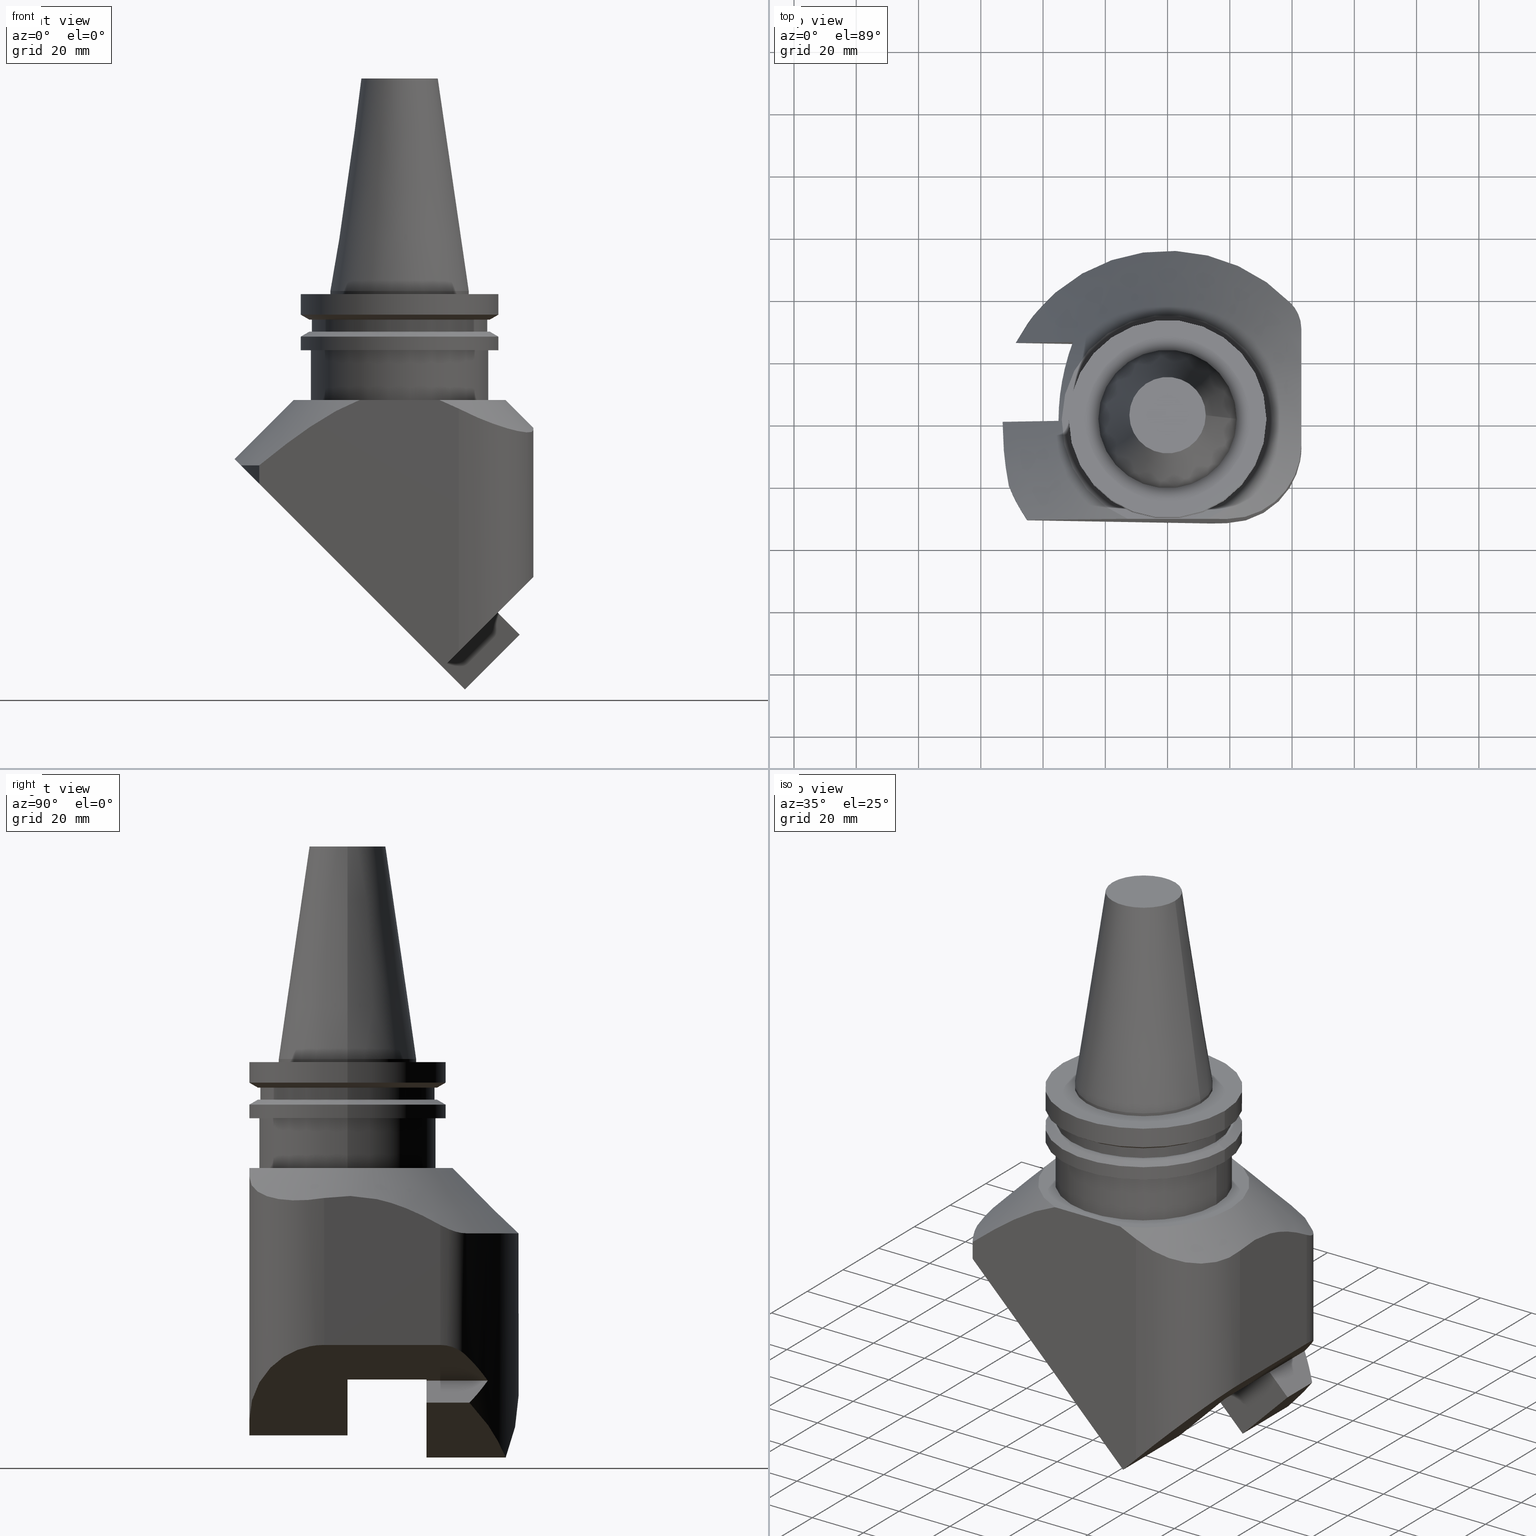
[diagram: canonical four-view strip — front | top / right | iso, engineering-drawing reading convention]
A machine part, canonical four-view strip (front | top / right | iso — engineering-drawing reading convention). The complete STEP part file that produces these views, byte-faithful:
ISO-10303-21;
HEADER;
FILE_DESCRIPTION((''),'1');
FILE_NAME('V:/01_Dxf_Field-HP\X2\FF71FF6FFF8CFF9F5916\X0\2013/BIGKAISER\X2\FF76FF80FF9BFF78FF9E63B28F095206\X0\_BKUS_201803/BCV40Y-45-BH/BCV40Y-45-BH1.000L-4.75.stp','2018-03-13T08:07:28',(''),(''),'Spatial Interop R21 SP3','Kubotek KeyCreator 2011 V10.0.2 (22737)',' ');
FILE_SCHEMA(('automotive_design'));
ENDSEC;
DATA;
#1=MECHANICAL_DESIGN_GEOMETRIC_PRESENTATION_REPRESENTATION(' ',(#10,#11,#12,#13,#14,#15,#16,#17,#18,#19,#20,#21,#22,#23,#24,#25,#26,#27,#28,#29,#30,#31,#32,#33,#34,#35,#36,#37,#38,#39,#40,#41,#42,#43,#44,#45,#46,#47,#48,#49,#50,#51,#52,#53,#54,#55,#56,#57,#58,#59,#60,#61,#62,#63,#64,#65,#66,#67,#68,#69,#70,#71,#72,#73,#74,#75,#76,#77,#78,#79,#80,#81,#82,#83,#84,#85,#86,#87,#88,#89,#90,#91,#92,#93,#94),#6);
#2=PRODUCT_DEFINITION_CONTEXT('',#95,'design');
#3=APPLICATION_PROTOCOL_DEFINITION('INTERNATIONAL STANDARD','automotive_design',1994,#95);
#4=PRODUCT_CATEGORY_RELATIONSHIP('NONE','NONE',#96,#97);
#5=SHAPE_DEFINITION_REPRESENTATION(#98,#99);
#6= (GEOMETRIC_REPRESENTATION_CONTEXT(3)GLOBAL_UNCERTAINTY_ASSIGNED_CONTEXT((#102))GLOBAL_UNIT_ASSIGNED_CONTEXT((#104,#105,#106))REPRESENTATION_CONTEXT('NONE','WORKSPACE'));
#10=STYLED_ITEM('',(#108),#109);
#11=STYLED_ITEM('',(#110),#111);
#12=STYLED_ITEM('',(#112),#113);
#13=STYLED_ITEM('',(#114,#115),#116);
#14=STYLED_ITEM('',(#117),#118);
#15=STYLED_ITEM('',(#119),#120);
#16=STYLED_ITEM('',(#121),#122);
#17=STYLED_ITEM('',(#123),#124);
#18=STYLED_ITEM('',(#125),#126);
#19=STYLED_ITEM('',(#127),#128);
#20=STYLED_ITEM('',(#129),#130);
#21=STYLED_ITEM('',(#131,#132),#133);
#22=STYLED_ITEM('',(#134),#135);
#23=STYLED_ITEM('',(#136),#137);
#24=STYLED_ITEM('',(#138,#139),#140);
#25=STYLED_ITEM('',(#141,#142),#143);
#26=STYLED_ITEM('',(#144,#145),#146);
#27=STYLED_ITEM('',(#147,#148),#149);
#28=STYLED_ITEM('',(#150,#151),#152);
#29=STYLED_ITEM('',(#153),#154);
#30=STYLED_ITEM('',(#155),#156);
#31=STYLED_ITEM('',(#157),#158);
#32=STYLED_ITEM('',(#159),#160);
#33=STYLED_ITEM('',(#161),#162);
#34=STYLED_ITEM('',(#163,#164),#165);
#35=STYLED_ITEM('',(#166,#167),#168);
#36=STYLED_ITEM('',(#169),#170);
#37=STYLED_ITEM('',(#171,#172),#173);
#38=STYLED_ITEM('',(#174),#175);
#39=STYLED_ITEM('',(#176),#177);
#40=STYLED_ITEM('',(#178),#179);
#41=STYLED_ITEM('',(#180),#181);
#42=STYLED_ITEM('',(#182),#183);
#43=STYLED_ITEM('',(#184),#185);
#44=STYLED_ITEM('',(#186),#187);
#45=STYLED_ITEM('',(#188),#189);
#46=STYLED_ITEM('',(#190,#191),#192);
#47=STYLED_ITEM('',(#193),#194);
#48=STYLED_ITEM('',(#195),#196);
#49=STYLED_ITEM('',(#197),#198);
#50=STYLED_ITEM('',(#199),#200);
#51=STYLED_ITEM('',(#201,#202),#203);
#52=STYLED_ITEM('',(#204),#205);
#53=STYLED_ITEM('',(#206),#207);
#54=STYLED_ITEM('',(#208),#209);
#55=STYLED_ITEM('',(#210),#211);
#56=STYLED_ITEM('',(#212,#213),#214);
#57=STYLED_ITEM('',(#215,#216),#217);
#58=STYLED_ITEM('',(#218),#219);
#59=STYLED_ITEM('',(#220),#221);
#60=STYLED_ITEM('',(#222,#223),#224);
#61=STYLED_ITEM('',(#225),#226);
#62=STYLED_ITEM('',(#227,#228),#229);
#63=STYLED_ITEM('',(#230,#231),#232);
#64=STYLED_ITEM('',(#233),#234);
#65=STYLED_ITEM('',(#235),#236);
#66=STYLED_ITEM('',(#237,#238),#239);
#67=STYLED_ITEM('',(#240,#241),#242);
#68=STYLED_ITEM('',(#243),#244);
#69=STYLED_ITEM('',(#245),#246);
#70=STYLED_ITEM('',(#247),#248);
#71=STYLED_ITEM('',(#249,#250),#251);
#72=STYLED_ITEM('',(#252),#253);
#73=STYLED_ITEM('',(#254),#255);
#74=STYLED_ITEM('',(#256),#257);
#75=STYLED_ITEM('',(#258,#259),#260);
#76=STYLED_ITEM('',(#261),#262);
#77=STYLED_ITEM('',(#263),#264);
#78=STYLED_ITEM('',(#265),#266);
#79=STYLED_ITEM('',(#267,#268),#269);
#80=STYLED_ITEM('',(#270,#271),#272);
#81=STYLED_ITEM('',(#273),#274);
#82=STYLED_ITEM('',(#275,#276),#277);
#83=STYLED_ITEM('',(#278,#279),#280);
#84=STYLED_ITEM('',(#281),#282);
#85=STYLED_ITEM('',(#283,#284),#285);
#86=STYLED_ITEM('',(#286,#287),#288);
#87=STYLED_ITEM('',(#289),#290);
#88=STYLED_ITEM('',(#291),#292);
#89=STYLED_ITEM('',(#293),#294);
#90=STYLED_ITEM('',(#295),#296);
#91=STYLED_ITEM('',(#297,#298),#299);
#92=STYLED_ITEM('',(#300),#301);
#93=STYLED_ITEM('',(#302,#303),#304);
#94=STYLED_ITEM('',(#305,#306),#307);
#95=APPLICATION_CONTEXT(' ');
#96=PRODUCT_CATEGORY('part','NONE');
#97=PRODUCT_RELATED_PRODUCT_CATEGORY('detail',' ',(#308));
#98=PRODUCT_DEFINITION_SHAPE('NONE','NONE',#309);
#99=ADVANCED_BREP_SHAPE_REPRESENTATION('Unnamed[1]',(#242,#310),#6);
#102=UNCERTAINTY_MEASURE_WITH_UNIT(LENGTH_MEASURE(1.0E-006),#104,'','');
#104= (CONVERSION_BASED_UNIT('MILLIMETRE',#313)LENGTH_UNIT()NAMED_UNIT(#316));
#105= (NAMED_UNIT(#318)PLANE_ANGLE_UNIT()SI_UNIT($,.RADIAN.));
#106= (NAMED_UNIT(#318)SOLID_ANGLE_UNIT()SI_UNIT($,.STERADIAN.));
#108=PRESENTATION_STYLE_ASSIGNMENT((#324));
#109=EDGE_CURVE('Unnamed[1]',#325,#325,#326,.T.);
#110=PRESENTATION_STYLE_ASSIGNMENT((#327));
#111=EDGE_CURVE('Unnamed[1]',#328,#328,#329,.T.);
#112=PRESENTATION_STYLE_ASSIGNMENT((#330));
#113=EDGE_CURVE('Unnamed[1]',#331,#332,#333,.T.);
#114=PRESENTATION_STYLE_ASSIGNMENT((#334));
#115=PRESENTATION_STYLE_ASSIGNMENT((#335));
#116=ADVANCED_FACE('Unnamed[1]',(#336),#337,.T.);
#117=PRESENTATION_STYLE_ASSIGNMENT((#338));
#118=EDGE_CURVE('Unnamed[1]',#339,#340,#341,.T.);
#119=PRESENTATION_STYLE_ASSIGNMENT((#342));
#120=EDGE_CURVE('Unnamed[1]',#343,#344,#345,.T.);
#121=PRESENTATION_STYLE_ASSIGNMENT((#346));
#122=EDGE_CURVE('Unnamed[1]',#347,#348,#349,.T.);
#123=PRESENTATION_STYLE_ASSIGNMENT((#350));
#124=EDGE_CURVE('Unnamed[1]',#351,#352,#353,.T.);
#125=PRESENTATION_STYLE_ASSIGNMENT((#354));
#126=EDGE_CURVE('Unnamed[1]',#355,#355,#356,.T.);
#127=PRESENTATION_STYLE_ASSIGNMENT((#357));
#128=EDGE_CURVE('Unnamed[1]',#358,#359,#360,.T.);
#129=PRESENTATION_STYLE_ASSIGNMENT((#361));
#130=EDGE_CURVE('Unnamed[1]',#362,#363,#364,.T.);
#131=PRESENTATION_STYLE_ASSIGNMENT((#365));
#132=PRESENTATION_STYLE_ASSIGNMENT((#366));
#133=ADVANCED_FACE('Unnamed[1]',(#367),#368,.T.);
#134=PRESENTATION_STYLE_ASSIGNMENT((#369));
#135=EDGE_CURVE('Unnamed[1]',#370,#370,#371,.T.);
#136=PRESENTATION_STYLE_ASSIGNMENT((#372));
#137=EDGE_CURVE('Unnamed[1]',#373,#373,#374,.T.);
#138=PRESENTATION_STYLE_ASSIGNMENT((#375));
#139=PRESENTATION_STYLE_ASSIGNMENT((#376));
#140=ADVANCED_FACE('Unnamed[1]',(#377),#378,.T.);
#141=PRESENTATION_STYLE_ASSIGNMENT((#379));
#142=PRESENTATION_STYLE_ASSIGNMENT((#380));
#143=ADVANCED_FACE('Unnamed[1]',(#381),#382,.F.);
#144=PRESENTATION_STYLE_ASSIGNMENT((#383));
#145=PRESENTATION_STYLE_ASSIGNMENT((#384));
#146=ADVANCED_FACE('Unnamed[1]',(#385,#386),#387,.T.);
#147=PRESENTATION_STYLE_ASSIGNMENT((#388));
#148=PRESENTATION_STYLE_ASSIGNMENT((#389));
#149=ADVANCED_FACE('Unnamed[1]',(#390,#391),#392,.T.);
#150=PRESENTATION_STYLE_ASSIGNMENT((#393));
#151=PRESENTATION_STYLE_ASSIGNMENT((#394));
#152=ADVANCED_FACE('Unnamed[1]',(#395),#396,.F.);
#153=PRESENTATION_STYLE_ASSIGNMENT((#397));
#154=EDGE_CURVE('Unnamed[1]',#398,#399,#400,.T.);
#155=PRESENTATION_STYLE_ASSIGNMENT((#401));
#156=EDGE_CURVE('Unnamed[1]',#402,#403,#404,.T.);
#157=PRESENTATION_STYLE_ASSIGNMENT((#405));
#158=EDGE_CURVE('Unnamed[1]',#406,#352,#407,.T.);
#159=PRESENTATION_STYLE_ASSIGNMENT((#408));
#160=EDGE_CURVE('Unnamed[1]',#409,#362,#410,.T.);
#161=PRESENTATION_STYLE_ASSIGNMENT((#411));
#162=EDGE_CURVE('Unnamed[1]',#412,#413,#414,.T.);
#163=PRESENTATION_STYLE_ASSIGNMENT((#415));
#164=PRESENTATION_STYLE_ASSIGNMENT((#416));
#165=ADVANCED_FACE('Unnamed[1]',(#417),#418,.T.);
#166=PRESENTATION_STYLE_ASSIGNMENT((#419));
#167=PRESENTATION_STYLE_ASSIGNMENT((#420));
#168=ADVANCED_FACE('Unnamed[1]',(#421),#422,.F.);
#169=PRESENTATION_STYLE_ASSIGNMENT((#423));
#170=EDGE_CURVE('Unnamed[1]',#343,#406,#424,.T.);
#171=PRESENTATION_STYLE_ASSIGNMENT((#425));
#172=PRESENTATION_STYLE_ASSIGNMENT((#426));
#173=ADVANCED_FACE('Unnamed[1]',(#427,#428),#429,.T.);
#174=PRESENTATION_STYLE_ASSIGNMENT((#430));
#175=EDGE_CURVE('Unnamed[1]',#398,#413,#431,.T.);
#176=PRESENTATION_STYLE_ASSIGNMENT((#432));
#177=EDGE_CURVE('Unnamed[1]',#399,#433,#434,.T.);
#178=PRESENTATION_STYLE_ASSIGNMENT((#435));
#179=EDGE_CURVE('Unnamed[1]',#351,#436,#437,.T.);
#180=PRESENTATION_STYLE_ASSIGNMENT((#438));
#181=EDGE_CURVE('Unnamed[1]',#403,#363,#439,.T.);
#182=PRESENTATION_STYLE_ASSIGNMENT((#440));
#183=EDGE_CURVE('Unnamed[1]',#441,#441,#442,.T.);
#184=PRESENTATION_STYLE_ASSIGNMENT((#443));
#185=EDGE_CURVE('Unnamed[1]',#444,#412,#445,.T.);
#186=PRESENTATION_STYLE_ASSIGNMENT((#446));
#187=EDGE_CURVE('Unnamed[1]',#409,#447,#448,.T.);
#188=PRESENTATION_STYLE_ASSIGNMENT((#449));
#189=EDGE_CURVE('Unnamed[1]',#344,#352,#450,.T.);
#190=PRESENTATION_STYLE_ASSIGNMENT((#451));
#191=PRESENTATION_STYLE_ASSIGNMENT((#452));
#192=ADVANCED_FACE('Unnamed[1]',(#453,#454),#455,.T.);
#193=PRESENTATION_STYLE_ASSIGNMENT((#456));
#194=EDGE_CURVE('Unnamed[1]',#457,#457,#458,.T.);
#195=PRESENTATION_STYLE_ASSIGNMENT((#459));
#196=EDGE_CURVE('Unnamed[1]',#363,#409,#460,.T.);
#197=PRESENTATION_STYLE_ASSIGNMENT((#461));
#198=EDGE_CURVE('Unnamed[1]',#332,#339,#462,.T.);
#199=PRESENTATION_STYLE_ASSIGNMENT((#463));
#200=EDGE_CURVE('Unnamed[1]',#403,#464,#465,.T.);
#201=PRESENTATION_STYLE_ASSIGNMENT((#466));
#202=PRESENTATION_STYLE_ASSIGNMENT((#467));
#203=ADVANCED_FACE('Unnamed[1]',(#468),#469,.T.);
#204=PRESENTATION_STYLE_ASSIGNMENT((#470));
#205=EDGE_CURVE('Unnamed[1]',#433,#344,#471,.T.);
#206=PRESENTATION_STYLE_ASSIGNMENT((#472));
#207=EDGE_CURVE('Unnamed[1]',#399,#343,#473,.T.);
#208=PRESENTATION_STYLE_ASSIGNMENT((#474));
#209=EDGE_CURVE('Unnamed[1]',#406,#331,#475,.T.);
#210=PRESENTATION_STYLE_ASSIGNMENT((#476));
#211=EDGE_CURVE('Unnamed[1]',#477,#477,#478,.T.);
#212=PRESENTATION_STYLE_ASSIGNMENT((#479));
#213=PRESENTATION_STYLE_ASSIGNMENT((#480));
#214=ADVANCED_FACE('Unnamed[1]',(#481,#482),#483,.T.);
#215=PRESENTATION_STYLE_ASSIGNMENT((#484));
#216=PRESENTATION_STYLE_ASSIGNMENT((#485));
#217=ADVANCED_FACE('Unnamed[1]',(#486,#487),#488,.T.);
#218=PRESENTATION_STYLE_ASSIGNMENT((#489));
#219=EDGE_CURVE('Unnamed[1]',#362,#444,#490,.T.);
#220=PRESENTATION_STYLE_ASSIGNMENT((#491));
#221=EDGE_CURVE('Unnamed[1]',#332,#359,#492,.T.);
#222=PRESENTATION_STYLE_ASSIGNMENT((#493));
#223=PRESENTATION_STYLE_ASSIGNMENT((#494));
#224=ADVANCED_FACE('Unnamed[1]',(#495),#496,.T.);
#225=PRESENTATION_STYLE_ASSIGNMENT((#497));
#226=EDGE_CURVE('Unnamed[1]',#359,#340,#498,.T.);
#227=PRESENTATION_STYLE_ASSIGNMENT((#499));
#228=PRESENTATION_STYLE_ASSIGNMENT((#500));
#229=ADVANCED_FACE('Unnamed[1]',(#501),#502,.F.);
#230=PRESENTATION_STYLE_ASSIGNMENT((#503));
#231=PRESENTATION_STYLE_ASSIGNMENT((#504));
#232=ADVANCED_FACE('Unnamed[1]',(#505,#506),#507,.T.);
#233=PRESENTATION_STYLE_ASSIGNMENT((#508));
#234=EDGE_CURVE('Unnamed[1]',#447,#398,#509,.T.);
#235=PRESENTATION_STYLE_ASSIGNMENT((#510));
#236=EDGE_CURVE('Unnamed[1]',#511,#511,#512,.T.);
#237=PRESENTATION_STYLE_ASSIGNMENT((#513));
#238=PRESENTATION_STYLE_ASSIGNMENT((#514));
#239=ADVANCED_FACE('Unnamed[1]',(#515,#516),#517,.T.);
#240=PRESENTATION_STYLE_ASSIGNMENT((#518));
#241=PRESENTATION_STYLE_ASSIGNMENT((#519));
#242=MANIFOLD_SOLID_BREP('Unnamed[1]',#520);
#243=PRESENTATION_STYLE_ASSIGNMENT((#521));
#244=EDGE_CURVE('Unnamed[1]',#347,#402,#522,.T.);
#245=PRESENTATION_STYLE_ASSIGNMENT((#523));
#246=EDGE_CURVE('Unnamed[1]',#340,#524,#525,.T.);
#247=PRESENTATION_STYLE_ASSIGNMENT((#526));
#248=EDGE_CURVE('Unnamed[1]',#436,#402,#527,.T.);
#249=PRESENTATION_STYLE_ASSIGNMENT((#528));
#250=PRESENTATION_STYLE_ASSIGNMENT((#529));
#251=ADVANCED_FACE('Unnamed[1]',(#530),#531,.F.);
#252=PRESENTATION_STYLE_ASSIGNMENT((#532));
#253=EDGE_CURVE('Unnamed[1]',#413,#433,#533,.T.);
#254=PRESENTATION_STYLE_ASSIGNMENT((#534));
#255=EDGE_CURVE('Unnamed[1]',#436,#348,#535,.T.);
#256=PRESENTATION_STYLE_ASSIGNMENT((#536));
#257=EDGE_CURVE('Unnamed[1]',#444,#412,#537,.T.);
#258=PRESENTATION_STYLE_ASSIGNMENT((#538));
#259=PRESENTATION_STYLE_ASSIGNMENT((#539));
#260=ADVANCED_FACE('Unnamed[1]',(#540),#541,.F.);
#261=PRESENTATION_STYLE_ASSIGNMENT((#542));
#262=EDGE_CURVE('Unnamed[1]',#347,#464,#543,.T.);
#263=PRESENTATION_STYLE_ASSIGNMENT((#544));
#264=EDGE_CURVE('Unnamed[1]',#331,#358,#545,.T.);
#265=PRESENTATION_STYLE_ASSIGNMENT((#546));
#266=EDGE_CURVE('Unnamed[1]',#339,#524,#547,.T.);
#267=PRESENTATION_STYLE_ASSIGNMENT((#548));
#268=PRESENTATION_STYLE_ASSIGNMENT((#549));
#269=ADVANCED_FACE('Unnamed[1]',(#550,#551),#552,.T.);
#270=PRESENTATION_STYLE_ASSIGNMENT((#553));
#271=PRESENTATION_STYLE_ASSIGNMENT((#554));
#272=ADVANCED_FACE('Unnamed[1]',(#555,#556),#557,.T.);
#273=PRESENTATION_STYLE_ASSIGNMENT((#558));
#274=EDGE_CURVE('Unnamed[1]',#559,#559,#560,.T.);
#275=PRESENTATION_STYLE_ASSIGNMENT((#561));
#276=PRESENTATION_STYLE_ASSIGNMENT((#562));
#277=ADVANCED_FACE('Unnamed[1]',(#563,#564),#565,.T.);
#278=PRESENTATION_STYLE_ASSIGNMENT((#566));
#279=PRESENTATION_STYLE_ASSIGNMENT((#567));
#280=ADVANCED_FACE('Unnamed[1]',(#568,#569),#570,.T.);
#281=PRESENTATION_STYLE_ASSIGNMENT((#571));
#282=EDGE_CURVE('Unnamed[1]',#572,#572,#573,.T.);
#283=PRESENTATION_STYLE_ASSIGNMENT((#574));
#284=PRESENTATION_STYLE_ASSIGNMENT((#575));
#285=ADVANCED_FACE('Unnamed[1]',(#576),#577,.F.);
#286=PRESENTATION_STYLE_ASSIGNMENT((#578));
#287=PRESENTATION_STYLE_ASSIGNMENT((#579));
#288=ADVANCED_FACE('Unnamed[1]',(#580),#581,.F.);
#289=PRESENTATION_STYLE_ASSIGNMENT((#582));
#290=EDGE_CURVE('Unnamed[1]',#464,#447,#583,.T.);
#291=PRESENTATION_STYLE_ASSIGNMENT((#584));
#292=EDGE_CURVE('Unnamed[1]',#348,#358,#585,.T.);
#293=PRESENTATION_STYLE_ASSIGNMENT((#586));
#294=EDGE_CURVE('Unnamed[1]',#587,#587,#588,.T.);
#295=PRESENTATION_STYLE_ASSIGNMENT((#589));
#296=EDGE_CURVE('Unnamed[1]',#590,#590,#591,.T.);
#297=PRESENTATION_STYLE_ASSIGNMENT((#592));
#298=PRESENTATION_STYLE_ASSIGNMENT((#593));
#299=ADVANCED_FACE('Unnamed[1]',(#594,#595),#596,.T.);
#300=PRESENTATION_STYLE_ASSIGNMENT((#597));
#301=EDGE_CURVE('Unnamed[1]',#524,#351,#598,.T.);
#302=PRESENTATION_STYLE_ASSIGNMENT((#599));
#303=PRESENTATION_STYLE_ASSIGNMENT((#600));
#304=ADVANCED_FACE('Unnamed[1]',(#601),#602,.F.);
#305=PRESENTATION_STYLE_ASSIGNMENT((#603));
#306=PRESENTATION_STYLE_ASSIGNMENT((#604));
#307=ADVANCED_FACE('Unnamed[1]',(#605),#606,.T.);
#308=PRODUCT('Unnamed[1]','Unnamed[1]','PART-Unnamed[1]-DESC',(#607));
#309=PRODUCT_DEFINITION('NONE','NONE',#608,#2);
#310=AXIS2_PLACEMENT_3D('',#609,#610,#611);
#313=LENGTH_MEASURE_WITH_UNIT(LENGTH_MEASURE(1.0),#612);
#316=DIMENSIONAL_EXPONENTS(1.0,0.0,0.0,0.0,0.0,0.0,0.0);
#318=DIMENSIONAL_EXPONENTS(0.0,0.0,0.0,0.0,0.0,0.0,0.0);
#324=CURVE_STYLE('',#613,POSITIVE_LENGTH_MEASURE(1000.0),#614);
#325=VERTEX_POINT('',#615);
#326=CIRCLE('',#616,22.225);
#327=CURVE_STYLE('',#617,POSITIVE_LENGTH_MEASURE(1000.0),#618);
#328=VERTEX_POINT('',#619);
#329=CIRCLE('',#620,31.75);
#330=CURVE_STYLE('',#621,POSITIVE_LENGTH_MEASURE(1000.0),#622);
#331=VERTEX_POINT('',#623);
#332=VERTEX_POINT('',#624);
#333=ELLIPSE('',#625,77.7817459305204,55.0);
#334=SURFACE_STYLE_USAGE(.BOTH.,#626);
#335=CURVE_STYLE('',#627,POSITIVE_LENGTH_MEASURE(1000.0),#628);
#336=FACE_OUTER_BOUND('',#629,.T.);
#337=CONICAL_SURFACE('',#630,44.4999999999994,0.785398163397441);
#338=CURVE_STYLE('',#631,POSITIVE_LENGTH_MEASURE(1000.0),#632);
#339=VERTEX_POINT('',#633);
#340=VERTEX_POINT('',#634);
#341=LINE('',#635,#636);
#342=CURVE_STYLE('',#637,POSITIVE_LENGTH_MEASURE(1000.0),#638);
#343=VERTEX_POINT('',#639);
#344=VERTEX_POINT('',#640);
#345=LINE('',#641,#642);
#346=CURVE_STYLE('',#643,POSITIVE_LENGTH_MEASURE(1000.0),#644);
#347=VERTEX_POINT('',#645);
#348=VERTEX_POINT('',#646);
#349=LINE('',#647,#648);
#350=CURVE_STYLE('',#649,POSITIVE_LENGTH_MEASURE(1000.0),#650);
#351=VERTEX_POINT('',#651);
#352=VERTEX_POINT('',#652);
#353=CIRCLE('',#653,55.0000000000001);
#354=CURVE_STYLE('',#654,POSITIVE_LENGTH_MEASURE(1000.0),#655);
#355=VERTEX_POINT('',#656);
#356=CIRCLE('',#657,31.75);
#357=CURVE_STYLE('',#658,POSITIVE_LENGTH_MEASURE(1000.0),#659);
#358=VERTEX_POINT('',#660);
#359=VERTEX_POINT('',#661);
#360=LINE('',#662,#663);
#361=CURVE_STYLE('',#664,POSITIVE_LENGTH_MEASURE(1000.0),#665);
#362=VERTEX_POINT('',#666);
#363=VERTEX_POINT('',#667);
#364=CIRCLE('',#668,55.0000000000001);
#365=SURFACE_STYLE_USAGE(.BOTH.,#669);
#366=CURVE_STYLE('',#670,POSITIVE_LENGTH_MEASURE(1000.0),#671);
#367=FACE_OUTER_BOUND('',#672,.T.);
#368=CYLINDRICAL_SURFACE('',#673,55.0);
#369=CURVE_STYLE('',#674,POSITIVE_LENGTH_MEASURE(1000.0),#675);
#370=VERTEX_POINT('',#676);
#371=CIRCLE('',#677,28.4999999999997);
#372=CURVE_STYLE('',#678,POSITIVE_LENGTH_MEASURE(1000.0),#679);
#373=VERTEX_POINT('',#680);
#374=CIRCLE('',#681,31.75);
#375=SURFACE_STYLE_USAGE(.BOTH.,#682);
#376=CURVE_STYLE('',#683,POSITIVE_LENGTH_MEASURE(1000.0),#684);
#377=FACE_OUTER_BOUND('',#685,.T.);
#378=PLANE('',#686);
#379=SURFACE_STYLE_USAGE(.BOTH.,#687);
#380=CURVE_STYLE('',#688,POSITIVE_LENGTH_MEASURE(1000.0),#689);
#381=FACE_OUTER_BOUND('',#690,.T.);
#382=PLANE('',#691);
#383=SURFACE_STYLE_USAGE(.BOTH.,#692);
#384=CURVE_STYLE('',#693,POSITIVE_LENGTH_MEASURE(1000.0),#694);
#385=FACE_BOUND('',#695,.T.);
#386=FACE_OUTER_BOUND('',#696,.T.);
#387=PLANE('',#697);
#388=SURFACE_STYLE_USAGE(.BOTH.,#698);
#389=CURVE_STYLE('',#699,POSITIVE_LENGTH_MEASURE(1000.0),#700);
#390=FACE_OUTER_BOUND('',#701,.T.);
#391=FACE_BOUND('',#702,.T.);
#392=PLANE('',#703);
#393=SURFACE_STYLE_USAGE(.BOTH.,#704);
#394=CURVE_STYLE('',#705,POSITIVE_LENGTH_MEASURE(1000.0),#706);
#395=FACE_OUTER_BOUND('',#707,.T.);
#396=PLANE('',#708);
#397=CURVE_STYLE('',#709,POSITIVE_LENGTH_MEASURE(1000.0),#710);
#398=VERTEX_POINT('',#711);
#399=VERTEX_POINT('',#712);
#400=ELLIPSE('',#713,33.9411254969548,24.0);
#401=CURVE_STYLE('',#714,POSITIVE_LENGTH_MEASURE(1000.0),#715);
#402=VERTEX_POINT('',#716);
#403=VERTEX_POINT('',#717);
#404=LINE('',#718,#719);
#405=CURVE_STYLE('',#720,POSITIVE_LENGTH_MEASURE(1000.0),#721);
#406=VERTEX_POINT('',#722);
#407=LINE('',#723,#724);
#408=CURVE_STYLE('',#725,POSITIVE_LENGTH_MEASURE(1000.0),#726);
#409=VERTEX_POINT('',#727);
#410=LINE('',#728,#729);
#411=CURVE_STYLE('',#730,POSITIVE_LENGTH_MEASURE(1000.0),#731);
#412=VERTEX_POINT('',#732);
#413=VERTEX_POINT('',#733);
#414=(B_SPLINE_CURVE(2,(#735,#736,#737),.UNSPECIFIED.,.F.,.F.)B_SPLINE_CURVE_WITH_KNOTS((3,3),(0.0,38.6326090331154),.UNSPECIFIED.)RATIONAL_B_SPLINE_CURVE((1.0,1.07311621530074,1.0))BOUNDED_CURVE()REPRESENTATION_ITEM('')GEOMETRIC_REPRESENTATION_ITEM()CURVE());
#415=SURFACE_STYLE_USAGE(.BOTH.,#744);
#416=CURVE_STYLE('',#745,POSITIVE_LENGTH_MEASURE(1000.0),#746);
#417=FACE_OUTER_BOUND('',#747,.T.);
#418=CYLINDRICAL_SURFACE('',#748,24.0);
#419=SURFACE_STYLE_USAGE(.BOTH.,#749);
#420=CURVE_STYLE('',#750,POSITIVE_LENGTH_MEASURE(1000.0),#751);
#421=FACE_OUTER_BOUND('',#752,.T.);
#422=PLANE('',#753);
#423=CURVE_STYLE('',#754,POSITIVE_LENGTH_MEASURE(1000.0),#755);
#424=ELLIPSE('',#756,16.9705627484774,12.0);
#425=SURFACE_STYLE_USAGE(.BOTH.,#757);
#426=CURVE_STYLE('',#758,POSITIVE_LENGTH_MEASURE(1000.0),#759);
#427=FACE_BOUND('',#760,.T.);
#428=FACE_OUTER_BOUND('',#761,.T.);
#429=PLANE('',#762);
#430=CURVE_STYLE('',#763,POSITIVE_LENGTH_MEASURE(1000.0),#764);
#431=LINE('',#765,#766);
#432=CURVE_STYLE('',#767,POSITIVE_LENGTH_MEASURE(1000.0),#768);
#433=VERTEX_POINT('',#769);
#434=LINE('',#770,#771);
#435=CURVE_STYLE('',#772,POSITIVE_LENGTH_MEASURE(1000.0),#773);
#436=VERTEX_POINT('',#774);
#437=(B_SPLINE_CURVE(2,(#776,#777,#778),.UNSPECIFIED.,.F.,.F.)B_SPLINE_CURVE_WITH_KNOTS((3,3),(0.0,33.5817904275308),.UNSPECIFIED.)RATIONAL_B_SPLINE_CURVE((1.0,1.04629863878547,1.0))BOUNDED_CURVE()REPRESENTATION_ITEM('')GEOMETRIC_REPRESENTATION_ITEM()CURVE());
#438=CURVE_STYLE('',#785,POSITIVE_LENGTH_MEASURE(1000.0),#786);
#439=B_SPLINE_CURVE_WITH_KNOTS('',2,(#787,#788,#789,#790,#791),.UNSPECIFIED.,.F.,.F.,(3,2,3),(0.0,20.8328998074148,41.6657996148295),.UNSPECIFIED.);
#440=CURVE_STYLE('',#792,POSITIVE_LENGTH_MEASURE(1000.0),#793);
#441=VERTEX_POINT('',#794);
#442=CIRCLE('',#795,28.18);
#443=CURVE_STYLE('',#796,POSITIVE_LENGTH_MEASURE(1000.0),#797);
#444=VERTEX_POINT('',#798);
#445=LINE('',#799,#800);
#446=CURVE_STYLE('',#801,POSITIVE_LENGTH_MEASURE(1000.0),#802);
#447=VERTEX_POINT('',#803);
#448=LINE('',#804,#805);
#449=CURVE_STYLE('',#806,POSITIVE_LENGTH_MEASURE(1000.0),#807);
#450=B_SPLINE_CURVE_WITH_KNOTS('',3,(#808,#809,#810,#811,#812,#813,#814,#815,#816,#817,#818,#819,#820,#821,#822,#823,#824,#825),.UNSPECIFIED.,.F.,.F.,(4,2,2,2,2,2,2,2,4),(27.7605098795428,29.3034102222533,30.8463105649638,32.3892109076743,33.6780644914804,34.9669180752865,36.2557716590926,37.5446252428987,38.8334788267049),.UNSPECIFIED.);
#451=SURFACE_STYLE_USAGE(.BOTH.,#826);
#452=CURVE_STYLE('',#827,POSITIVE_LENGTH_MEASURE(1000.0),#828);
#453=FACE_OUTER_BOUND('',#829,.T.);
#454=FACE_BOUND('',#830,.T.);
#455=PLANE('',#831);
#456=CURVE_STYLE('',#832,POSITIVE_LENGTH_MEASURE(1000.0),#833);
#457=VERTEX_POINT('',#834);
#458=CIRCLE('',#835,28.18);
#459=CURVE_STYLE('',#836,POSITIVE_LENGTH_MEASURE(1000.0),#837);
#460=ELLIPSE('',#838,77.7817459305204,55.0);
#461=CURVE_STYLE('',#839,POSITIVE_LENGTH_MEASURE(1000.0),#840);
#462=ELLIPSE('',#841,77.781745860767,55.0);
#463=CURVE_STYLE('',#842,POSITIVE_LENGTH_MEASURE(1000.0),#843);
#464=VERTEX_POINT('',#844);
#465=LINE('',#845,#846);
#466=SURFACE_STYLE_USAGE(.BOTH.,#847);
#467=CURVE_STYLE('',#848,POSITIVE_LENGTH_MEASURE(1000.0),#849);
#468=FACE_OUTER_BOUND('',#850,.T.);
#469=CYLINDRICAL_SURFACE('',#851,55.0);
#470=CURVE_STYLE('',#852,POSITIVE_LENGTH_MEASURE(1000.0),#853);
#471=(B_SPLINE_CURVE(2,(#855,#856,#857),.UNSPECIFIED.,.F.,.F.)B_SPLINE_CURVE_WITH_KNOTS((3,3),(0.0,72.6636084983805),.UNSPECIFIED.)RATIONAL_B_SPLINE_CURVE((1.0,1.27906976744211,1.0))BOUNDED_CURVE()REPRESENTATION_ITEM('')GEOMETRIC_REPRESENTATION_ITEM()CURVE());
#472=CURVE_STYLE('',#864,POSITIVE_LENGTH_MEASURE(1000.0),#865);
#473=LINE('',#866,#867);
#474=CURVE_STYLE('',#868,POSITIVE_LENGTH_MEASURE(1000.0),#869);
#475=ELLIPSE('',#870,77.7817459305214,55.0);
#476=CURVE_STYLE('',#871,POSITIVE_LENGTH_MEASURE(1000.0),#872);
#477=VERTEX_POINT('',#873);
#478=CIRCLE('',#874,31.75);
#479=SURFACE_STYLE_USAGE(.BOTH.,#875);
#480=CURVE_STYLE('',#876,POSITIVE_LENGTH_MEASURE(1000.0),#877);
#481=FACE_BOUND('',#878,.T.);
#482=FACE_BOUND('',#879,.T.);
#483=CONICAL_SURFACE('',#880,17.2484375007384,0.144812498217751);
#484=SURFACE_STYLE_USAGE(.BOTH.,#881);
#485=CURVE_STYLE('',#882,POSITIVE_LENGTH_MEASURE(1000.0),#883);
#486=FACE_BOUND('',#884,.T.);
#487=FACE_BOUND('',#885,.T.);
#488=CYLINDRICAL_SURFACE('',#886,31.75);
#489=CURVE_STYLE('',#887,POSITIVE_LENGTH_MEASURE(1000.0),#888);
#490=(B_SPLINE_CURVE(2,(#890,#891,#892),.UNSPECIFIED.,.F.,.F.)B_SPLINE_CURVE_WITH_KNOTS((3,3),(0.0,38.6326090331154),.UNSPECIFIED.)RATIONAL_B_SPLINE_CURVE((1.0,1.07311621530074,1.0))BOUNDED_CURVE()REPRESENTATION_ITEM('')GEOMETRIC_REPRESENTATION_ITEM()CURVE());
#491=CURVE_STYLE('',#899,POSITIVE_LENGTH_MEASURE(1000.0),#900);
#492=LINE('',#901,#902);
#493=SURFACE_STYLE_USAGE(.BOTH.,#903);
#494=CURVE_STYLE('',#904,POSITIVE_LENGTH_MEASURE(1000.0),#905);
#495=FACE_OUTER_BOUND('',#906,.T.);
#496=CYLINDRICAL_SURFACE('',#907,12.0);
#497=CURVE_STYLE('',#908,POSITIVE_LENGTH_MEASURE(1000.0),#909);
#498=LINE('',#910,#911);
#499=SURFACE_STYLE_USAGE(.BOTH.,#912);
#500=CURVE_STYLE('',#913,POSITIVE_LENGTH_MEASURE(1000.0),#914);
#501=FACE_OUTER_BOUND('',#915,.T.);
#502=PLANE('',#916);
#503=SURFACE_STYLE_USAGE(.BOTH.,#917);
#504=CURVE_STYLE('',#918,POSITIVE_LENGTH_MEASURE(1000.0),#919);
#505=FACE_BOUND('',#920,.T.);
#506=FACE_BOUND('',#921,.T.);
#507=CYLINDRICAL_SURFACE('',#922,31.75);
#508=CURVE_STYLE('',#923,POSITIVE_LENGTH_MEASURE(1000.0),#924);
#509=LINE('',#925,#926);
#510=CURVE_STYLE('',#927,POSITIVE_LENGTH_MEASURE(1000.0),#928);
#511=VERTEX_POINT('',#929);
#512=CIRCLE('',#930,12.2718750014769);
#513=SURFACE_STYLE_USAGE(.BOTH.,#931);
#514=CURVE_STYLE('',#932,POSITIVE_LENGTH_MEASURE(1000.0),#933);
#515=FACE_BOUND('',#934,.T.);
#516=FACE_BOUND('',#935,.T.);
#517=CYLINDRICAL_SURFACE('',#936,28.18);
#518=SURFACE_STYLE_USAGE(.BOTH.,#937);
#519=CURVE_STYLE('',#938,POSITIVE_LENGTH_MEASURE(1000.0),#939);
#520=CLOSED_SHELL('',(#165,#285,#140,#152,#116,#251,#288,#260,#229,#304,#224,#203,#143,#168,#133,#307,#214,#272,#299,#217,#280,#146,#239,#192,#269,#232,#173,#277,#149));
#521=CURVE_STYLE('',#940,POSITIVE_LENGTH_MEASURE(1000.0),#941);
#522=LINE('',#942,#943);
#523=CURVE_STYLE('',#944,POSITIVE_LENGTH_MEASURE(1000.0),#945);
#524=VERTEX_POINT('',#946);
#525=LINE('',#947,#948);
#526=CURVE_STYLE('',#949,POSITIVE_LENGTH_MEASURE(1000.0),#950);
#527=B_SPLINE_CURVE_WITH_KNOTS('',2,(#951,#952,#953),.UNSPECIFIED.,.F.,.F.,(3,3),(0.0,119.908544665202),.UNSPECIFIED.);
#528=SURFACE_STYLE_USAGE(.BOTH.,#954);
#529=CURVE_STYLE('',#955,POSITIVE_LENGTH_MEASURE(1000.0),#956);
#530=FACE_OUTER_BOUND('',#957,.T.);
#531=PLANE('',#958);
#532=CURVE_STYLE('',#959,POSITIVE_LENGTH_MEASURE(1000.0),#960);
#533=B_SPLINE_CURVE_WITH_KNOTS('',3,(#961,#962,#963,#964,#965,#966,#967,#968,#969,#970,#971,#972,#973,#974,#975,#976,#977,#978,#979,#980,#981,#982,#983,#984,#985,#986),.UNSPECIFIED.,.F.,.F.,(4,2,2,2,2,2,2,2,2,2,2,2,4),(7.0755595060852,10.6133392591278,14.1511190121704,17.3437649584469,20.5364109047233,23.7290568509998,26.9217027972763,29.9863579226118,33.0510130479474,36.1156681732829,39.1803232986185,42.3222428172419,45.4641623358653),.UNSPECIFIED.);
#534=CURVE_STYLE('',#987,POSITIVE_LENGTH_MEASURE(1000.0),#988);
#535=LINE('',#989,#990);
#536=CURVE_STYLE('',#991,POSITIVE_LENGTH_MEASURE(1000.0),#992);
#537=CIRCLE('',#993,33.9999999999988);
#538=SURFACE_STYLE_USAGE(.BOTH.,#994);
#539=CURVE_STYLE('',#995,POSITIVE_LENGTH_MEASURE(1000.0),#996);
#540=FACE_OUTER_BOUND('',#997,.T.);
#541=PLANE('',#998);
#542=CURVE_STYLE('',#999,POSITIVE_LENGTH_MEASURE(1000.0),#1000);
#543=LINE('',#1001,#1002);
#544=CURVE_STYLE('',#1003,POSITIVE_LENGTH_MEASURE(1000.0),#1004);
#545=LINE('',#1005,#1006);
#546=CURVE_STYLE('',#1007,POSITIVE_LENGTH_MEASURE(1000.0),#1008);
#547=ELLIPSE('',#1009,77.7817459305204,55.0);
#548=SURFACE_STYLE_USAGE(.BOTH.,#1010);
#549=CURVE_STYLE('',#1011,POSITIVE_LENGTH_MEASURE(1000.0),#1012);
#550=FACE_BOUND('',#1013,.T.);
#551=FACE_BOUND('',#1014,.T.);
#552=CONICAL_SURFACE('',#1015,30.352956595,1.04719755170464);
#553=SURFACE_STYLE_USAGE(.BOTH.,#1016);
#554=CURVE_STYLE('',#1017,POSITIVE_LENGTH_MEASURE(1000.0),#1018);
#555=FACE_BOUND('',#1019,.T.);
#556=FACE_BOUND('',#1020,.T.);
#557=CYLINDRICAL_SURFACE('',#1021,22.225);
#558=CURVE_STYLE('',#1022,POSITIVE_LENGTH_MEASURE(1000.0),#1023);
#559=VERTEX_POINT('',#1024);
#560=CIRCLE('',#1025,22.225);
#561=SURFACE_STYLE_USAGE(.BOTH.,#1026);
#562=CURVE_STYLE('',#1027,POSITIVE_LENGTH_MEASURE(1000.0),#1028);
#563=FACE_BOUND('',#1029,.T.);
#564=FACE_BOUND('',#1030,.T.);
#565=CYLINDRICAL_SURFACE('',#1031,28.4999999999999);
#566=SURFACE_STYLE_USAGE(.BOTH.,#1032);
#567=CURVE_STYLE('',#1033,POSITIVE_LENGTH_MEASURE(1000.0),#1034);
#568=FACE_BOUND('',#1035,.T.);
#569=FACE_BOUND('',#1036,.T.);
#570=CONICAL_SURFACE('',#1037,30.365080955,1.04719755034994);
#571=CURVE_STYLE('',#1038,POSITIVE_LENGTH_MEASURE(1000.0),#1039);
#572=VERTEX_POINT('',#1040);
#573=CIRCLE('',#1041,28.98016191);
#574=SURFACE_STYLE_USAGE(.BOTH.,#1042);
#575=CURVE_STYLE('',#1043,POSITIVE_LENGTH_MEASURE(1000.0),#1044);
#576=FACE_OUTER_BOUND('',#1045,.T.);
#577=PLANE('',#1046);
#578=SURFACE_STYLE_USAGE(.BOTH.,#1047);
#579=CURVE_STYLE('',#1048,POSITIVE_LENGTH_MEASURE(1000.0),#1049);
#580=FACE_OUTER_BOUND('',#1050,.T.);
#581=PLANE('',#1051);
#582=CURVE_STYLE('',#1052,POSITIVE_LENGTH_MEASURE(1000.0),#1053);
#583=LINE('',#1054,#1055);
#584=CURVE_STYLE('',#1056,POSITIVE_LENGTH_MEASURE(1000.0),#1057);
#585=LINE('',#1058,#1059);
#586=CURVE_STYLE('',#1060,POSITIVE_LENGTH_MEASURE(1000.0),#1061);
#587=VERTEX_POINT('',#1062);
#588=CIRCLE('',#1063,28.5000000000002);
#589=CURVE_STYLE('',#1064,POSITIVE_LENGTH_MEASURE(1000.0),#1065);
#590=VERTEX_POINT('',#1066);
#591=CIRCLE('',#1067,28.95591319);
#592=SURFACE_STYLE_USAGE(.BOTH.,#1068);
#593=CURVE_STYLE('',#1069,POSITIVE_LENGTH_MEASURE(1000.0),#1070);
#594=FACE_OUTER_BOUND('',#1071,.T.);
#595=FACE_BOUND('',#1072,.T.);
#596=PLANE('',#1073);
#597=CURVE_STYLE('',#1074,POSITIVE_LENGTH_MEASURE(1000.0),#1075);
#598=LINE('',#1076,#1077);
#599=SURFACE_STYLE_USAGE(.BOTH.,#1078);
#600=CURVE_STYLE('',#1079,POSITIVE_LENGTH_MEASURE(1000.0),#1080);
#601=FACE_OUTER_BOUND('',#1081,.T.);
#602=PLANE('',#1082);
#603=SURFACE_STYLE_USAGE(.BOTH.,#1083);
#604=CURVE_STYLE('',#1084,POSITIVE_LENGTH_MEASURE(1000.0),#1085);
#605=FACE_OUTER_BOUND('',#1086,.T.);
#606=PLANE('',#1087);
#607=PRODUCT_CONTEXT('',#95,'mechanical');
#608=PRODUCT_DEFINITION_FORMATION_WITH_SPECIFIED_SOURCE(' ','NONE',#308,.NOT_KNOWN.);
#609=CARTESIAN_POINT('',(0.0,0.0,0.0));
#610=DIRECTION('',(0.0,0.0,1.0));
#611=DIRECTION('',(1.0,0.0,0.0));
#612= (NAMED_UNIT(#316)LENGTH_UNIT()SI_UNIT(.MILLI.,.METRE.));
#613=DRAUGHTING_PRE_DEFINED_CURVE_FONT('continuous');
#614=COLOUR_RGB('',0.0,1.0,0.0);
#615=CARTESIAN_POINT('',(22.225,-1.00919272938427E-014,-0.999999999999997));
#616=AXIS2_PLACEMENT_3D('',#1089,#1090,#1091);
#617=DRAUGHTING_PRE_DEFINED_CURVE_FONT('continuous');
#618=COLOUR_RGB('',0.0,1.0,0.0);
#619=CARTESIAN_POINT('',(31.75,-1.83297821365613E-014,-19.05));
#620=AXIS2_PLACEMENT_3D('',#1092,#1093,#1094);
#621=DRAUGHTING_PRE_DEFINED_CURVE_FONT('continuous');
#622=COLOUR_RGB('',0.0,1.0,0.0);
#623=CARTESIAN_POINT('',(31.5358910396797,45.0609318182997,-103.321973336589));
#624=CARTESIAN_POINT('',(38.6069588654324,39.1727293810734,-110.393041162342));
#625=AXIS2_PLACEMENT_3D('',#1095,#1096,#1097);
#626=SURFACE_SIDE_STYLE('',(#1098));
#627=DRAUGHTING_PRE_DEFINED_CURVE_FONT('continuous');
#628=COLOUR_RGB('',0.0,1.0,0.0);
#629=EDGE_LOOP('',(#1099,#1100,#1101,#1102,#1103,#1104,#1105,#1106,#1107,#1108,#1109,#1110));
#630=AXIS2_PLACEMENT_3D('',#1111,#1112,#1113);
#631=DRAUGHTING_PRE_DEFINED_CURVE_FONT('continuous');
#632=COLOUR_RGB('',0.0,1.0,0.0);
#633=CARTESIAN_POINT('',(20.9999999961971,50.8330601101263,-127.999999999998));
#634=CARTESIAN_POINT('',(20.9999999980978,25.4,-127.999999998097));
#635=CARTESIAN_POINT('',(20.9999999961965,-3.77475828355659E-014,-127.999999999999));
#636=VECTOR('',#1114,1.0);
#637=DRAUGHTING_PRE_DEFINED_CURVE_FONT('continuous');
#638=COLOUR_RGB('',0.0,1.0,0.0);
#639=CARTESIAN_POINT('',(43.0,29.7993288515026,-91.8578643762685));
#640=CARTESIAN_POINT('',(43.0000000000008,29.7993288515026,-53.3163454381138));
#641=CARTESIAN_POINT('',(43.0000000000008,29.7993288515026,-276.895414657619));
#642=VECTOR('',#1115,1.0);
#643=DRAUGHTING_PRE_DEFINED_CURVE_FONT('continuous');
#644=COLOUR_RGB('',0.0,1.0,0.0);
#645=CARTESIAN_POINT('',(31.889444430273,-1.57090582334578E-014,-102.968419945996));
#646=CARTESIAN_POINT('',(31.889444430273,25.4,-102.968419945996));
#647=CARTESIAN_POINT('',(31.889444430273,-2.95589135374821E-014,-102.968419945996));
#648=VECTOR('',#1116,1.0);
#649=DRAUGHTING_PRE_DEFINED_CURVE_FONT('continuous');
#650=COLOUR_RGB('',0.0,1.0,0.0);
#651=CARTESIAN_POINT('',(-48.7836038029173,25.4,-56.0));
#652=CARTESIAN_POINT('',(39.6511627906985,38.1154206240149,-56.0000000000004));
#653=AXIS2_PLACEMENT_3D('',#1117,#1118,#1119);
#654=DRAUGHTING_PRE_DEFINED_CURVE_FONT('continuous');
#655=COLOUR_RGB('',0.0,1.0,0.0);
#656=CARTESIAN_POINT('',(31.75,-1.57875564243959E-014,-7.60083323));
#657=AXIS2_PLACEMENT_3D('',#1120,#1121,#1122);
#658=DRAUGHTING_PRE_DEFINED_CURVE_FONT('continuous');
#659=COLOUR_RGB('',0.0,1.0,0.0);
#660=CARTESIAN_POINT('',(31.5358910396797,25.4,-103.321973336589));
#661=CARTESIAN_POINT('',(38.6069588654324,25.4,-110.393041162342));
#662=CARTESIAN_POINT('',(24.5714249490842,25.4,-96.3575072459936));
#663=VECTOR('',#1123,1.0);
#664=DRAUGHTING_PRE_DEFINED_CURVE_FONT('continuous');
#665=COLOUR_RGB('',0.0,1.0,0.0);
#666=CARTESIAN_POINT('',(-45.0860288781339,-31.5000000000002,-55.9999999999993));
#667=CARTESIAN_POINT('',(-50.9999999999992,-20.5912602819761,-56.0));
#668=AXIS2_PLACEMENT_3D('',#1124,#1125,#1126);
#669=SURFACE_SIDE_STYLE('',(#1127));
#670=DRAUGHTING_PRE_DEFINED_CURVE_FONT('continuous');
#671=COLOUR_RGB('',0.0,1.0,0.0);
#672=EDGE_LOOP('',(#1128,#1129,#1130));
#673=AXIS2_PLACEMENT_3D('',#1131,#1132,#1133);
#674=DRAUGHTING_PRE_DEFINED_CURVE_FONT('continuous');
#675=COLOUR_RGB('',0.0,1.0,0.0);
#676=CARTESIAN_POINT('',(28.4999999999997,-1.68864922045485E-014,-19.05));
#677=AXIS2_PLACEMENT_3D('',#1134,#1135,#1136);
#678=DRAUGHTING_PRE_DEFINED_CURVE_FONT('continuous');
#679=COLOUR_RGB('',0.0,1.0,0.0);
#680=CARTESIAN_POINT('',(31.75,-1.73534890390847E-014,-14.65316677));
#681=AXIS2_PLACEMENT_3D('',#1137,#1138,#1139);
#682=SURFACE_SIDE_STYLE('',(#1140));
#683=DRAUGHTING_PRE_DEFINED_CURVE_FONT('continuous');
#684=COLOUR_RGB('',0.0,1.0,0.0);
#685=EDGE_LOOP('',(#1141,#1142,#1143,#1144));
#686=AXIS2_PLACEMENT_3D('',#1145,#1146,#1147);
#687=SURFACE_SIDE_STYLE('',(#1148));
#688=DRAUGHTING_PRE_DEFINED_CURVE_FONT('continuous');
#689=COLOUR_RGB('',0.0,1.0,0.0);
#690=EDGE_LOOP('',(#1149,#1150,#1151,#1152));
#691=AXIS2_PLACEMENT_3D('',#1153,#1154,#1155);
#692=SURFACE_SIDE_STYLE('',(#1156));
#693=DRAUGHTING_PRE_DEFINED_CURVE_FONT('continuous');
#694=COLOUR_RGB('',0.0,1.0,0.0);
#695=EDGE_LOOP('',(#1157));
#696=EDGE_LOOP('',(#1158));
#697=AXIS2_PLACEMENT_3D('',#1159,#1160,#1161);
#698=SURFACE_SIDE_STYLE('',(#1162));
#699=DRAUGHTING_PRE_DEFINED_CURVE_FONT('continuous');
#700=COLOUR_RGB('',0.0,1.0,0.0);
#701=EDGE_LOOP('',(#1163,#1164));
#702=EDGE_LOOP('',(#1165));
#703=AXIS2_PLACEMENT_3D('',#1166,#1167,#1168);
#704=SURFACE_SIDE_STYLE('',(#1169));
#705=DRAUGHTING_PRE_DEFINED_CURVE_FONT('continuous');
#706=COLOUR_RGB('',0.0,1.0,0.0);
#707=EDGE_LOOP('',(#1170,#1171,#1172,#1173,#1174,#1175,#1176));
#708=AXIS2_PLACEMENT_3D('',#1177,#1178,#1179);
#709=DRAUGHTING_PRE_DEFINED_CURVE_FONT('continuous');
#710=COLOUR_RGB('',0.0,1.0,0.0);
#711=CARTESIAN_POINT('',(19.0000000000007,-31.5,-115.857864376268));
#712=CARTESIAN_POINT('',(43.0,-7.50000000000004,-91.8578643762685));
#713=AXIS2_PLACEMENT_3D('',#1180,#1181,#1182);
#714=DRAUGHTING_PRE_DEFINED_CURVE_FONT('continuous');
#715=COLOUR_RGB('',0.0,1.0,0.0);
#716=CARTESIAN_POINT('',(-35.0394877578616,2.88745666838479E-014,-36.0394877578613));
#717=CARTESIAN_POINT('',(-52.9999999999995,6.42860250629186E-014,-53.9999999999994));
#718=CARTESIAN_POINT('',(-44.4999999999994,1.97470934346012E-014,-45.4999999999992));
#719=VECTOR('',#1183,1.0);
#720=DRAUGHTING_PRE_DEFINED_CURVE_FONT('continuous');
#721=COLOUR_RGB('',0.0,1.0,0.0);
#722=CARTESIAN_POINT('',(39.6511627906986,38.115420624015,-95.2067015855701));
#723=CARTESIAN_POINT('',(39.6511627906986,38.1154206240149,-276.895414657619));
#724=VECTOR('',#1184,1.0);
#725=DRAUGHTING_PRE_DEFINED_CURVE_FONT('continuous');
#726=COLOUR_RGB('',0.0,1.0,0.0);
#727=CARTESIAN_POINT('',(-45.0860288781346,-31.5000000000002,-61.9139711218646));
#728=CARTESIAN_POINT('',(-45.0860288781346,-31.5000000000002,-91.999999999999));
#729=VECTOR('',#1185,1.0);
#730=DRAUGHTING_PRE_DEFINED_CURVE_FONT('continuous');
#731=COLOUR_RGB('',0.0,1.0,0.0);
#732=CARTESIAN_POINT('',(12.796483892066,-31.5000000000002,-34.9999999999984));
#733=CARTESIAN_POINT('',(19.0000000000007,-31.5,-37.7865464538328));
#735=CARTESIAN_POINT('',(12.796483892066,-31.5000000000002,-34.9999999999984));
#736=CARTESIAN_POINT('',(25.1318156845002,-31.5000000000002,-39.6426139583861));
#737=CARTESIAN_POINT('',(45.0860288781487,-31.5000000000003,-56.0000000000115));
#744=SURFACE_SIDE_STYLE('',(#1186));
#745=DRAUGHTING_PRE_DEFINED_CURVE_FONT('continuous');
#746=COLOUR_RGB('',0.0,1.0,0.0);
#747=EDGE_LOOP('',(#1187,#1188,#1189,#1190));
#748=AXIS2_PLACEMENT_3D('',#1191,#1192,#1193);
#749=SURFACE_SIDE_STYLE('',(#1194));
#750=DRAUGHTING_PRE_DEFINED_CURVE_FONT('continuous');
#751=COLOUR_RGB('',0.0,1.0,0.0);
#752=EDGE_LOOP('',(#1195,#1196,#1197,#1198,#1199,#1200,#1201));
#753=AXIS2_PLACEMENT_3D('',#1202,#1203,#1204);
#754=DRAUGHTING_PRE_DEFINED_CURVE_FONT('continuous');
#755=COLOUR_RGB('',0.0,1.0,0.0);
#756=AXIS2_PLACEMENT_3D('',#1205,#1206,#1207);
#757=SURFACE_SIDE_STYLE('',(#1208));
#758=DRAUGHTING_PRE_DEFINED_CURVE_FONT('continuous');
#759=COLOUR_RGB('',0.0,1.0,0.0);
#760=EDGE_LOOP('',(#1209));
#761=EDGE_LOOP('',(#1210));
#762=AXIS2_PLACEMENT_3D('',#1211,#1212,#1213);
#763=DRAUGHTING_PRE_DEFINED_CURVE_FONT('continuous');
#764=COLOUR_RGB('',0.0,1.0,0.0);
#765=CARTESIAN_POINT('',(19.0000000000007,-31.5000000000001,-276.895414657619));
#766=VECTOR('',#1214,1.0);
#767=DRAUGHTING_PRE_DEFINED_CURVE_FONT('continuous');
#768=COLOUR_RGB('',0.0,1.0,0.0);
#769=CARTESIAN_POINT('',(43.0000000000007,-7.50000000000009,-44.6491695224553));
#770=CARTESIAN_POINT('',(43.0000000000007,-7.50000000000014,-276.895414657619));
#771=VECTOR('',#1215,1.0);
#772=DRAUGHTING_PRE_DEFINED_CURVE_FONT('continuous');
#773=COLOUR_RGB('',0.0,1.0,0.0);
#774=CARTESIAN_POINT('',(-30.4363953520996,25.4000000000001,-40.6425801636232));
#776=CARTESIAN_POINT('',(-48.783840437169,25.4,-56.0002098886828));
#777=CARTESIAN_POINT('',(-32.603885582621,25.4000000000001,-41.6489858205854));
#778=CARTESIAN_POINT('',(-22.6017698421922,25.4000000000001,-34.9999999999913));
#785=DRAUGHTING_PRE_DEFINED_CURVE_FONT('continuous');
#786=COLOUR_RGB('',0.0,1.0,0.0);
#787=CARTESIAN_POINT('',(-50.9997901113164,20.5923407217548,-56.0002098886828));
#788=CARTESIAN_POINT('',(-52.9999999999996,10.2961703608775,-53.9999999999996));
#789=CARTESIAN_POINT('',(-52.9999999999997,1.15463194561016E-014,-53.9999999999996));
#790=CARTESIAN_POINT('',(-52.9999999999997,-10.2961703608774,-53.9999999999996));
#791=CARTESIAN_POINT('',(-50.9997901113164,-20.5923407217548,-56.0002098886828));
#792=DRAUGHTING_PRE_DEFINED_CURVE_FONT('continuous');
#793=COLOUR_RGB('',0.0,1.0,0.0);
#794=CARTESIAN_POINT('',(28.18,-1.54098955817972E-014,-13.04));
#795=AXIS2_PLACEMENT_3D('',#1216,#1217,#1218);
#796=DRAUGHTING_PRE_DEFINED_CURVE_FONT('continuous');
#797=COLOUR_RGB('',0.0,1.0,0.0);
#798=CARTESIAN_POINT('',(-12.796483892066,-31.5000000000002,-34.9999999999984));
#799=CARTESIAN_POINT('',(9.10349278046644,-31.5000000000002,-34.9999999999984));
#800=VECTOR('',#1219,1.0);
#801=DRAUGHTING_PRE_DEFINED_CURVE_FONT('continuous');
#802=COLOUR_RGB('',0.0,1.0,0.0);
#803=CARTESIAN_POINT('',(13.9289321881349,-31.5000000000003,-120.928932188134));
#804=CARTESIAN_POINT('',(31.2131000541629,-31.5000000000003,-138.213100054162));
#805=VECTOR('',#1220,1.0);
#806=DRAUGHTING_PRE_DEFINED_CURVE_FONT('continuous');
#807=COLOUR_RGB('',0.0,1.0,0.0);
#808=CARTESIAN_POINT('',(42.9857557853325,29.2148134501773,-52.9738446275043));
#809=CARTESIAN_POINT('',(43.0086331019977,29.6839232987416,-53.2564551514206));
#810=CARTESIAN_POINT('',(43.0044193920009,30.171432085167,-53.5311065562401));
#811=CARTESIAN_POINT('',(42.9330994531678,31.1578877851202,-54.0460814201967));
#812=CARTESIAN_POINT('',(42.865901481108,31.6571703282046,-54.2865629527265));
#813=CARTESIAN_POINT('',(42.6696571086593,32.6401554698778,-54.7203428433219));
#814=CARTESIAN_POINT('',(42.54055220188,33.1238529322254,-54.9136263698599));
#815=CARTESIAN_POINT('',(42.2587486622815,33.9713573270026,-55.21908374886));
#816=CARTESIAN_POINT('',(42.103402104987,34.3720408572199,-55.3502697574906));
#817=CARTESIAN_POINT('',(41.7370472659778,35.1762284600335,-55.5817398436669));
#818=CARTESIAN_POINT('',(41.5259916391165,35.5797173286451,-55.6820018060097));
#819=CARTESIAN_POINT('',(41.0552206566601,36.3645347479104,-55.8425709212611));
#820=CARTESIAN_POINT('',(40.7952706044606,36.7461972633082,-55.9029357961453));
#821=CARTESIAN_POINT('',(40.2421062007657,37.4667782265759,-55.9816498859721));
#822=CARTESIAN_POINT('',(39.9488912541502,37.8056961193793,-56.0000000000004));
#823=CARTESIAN_POINT('',(39.3534343272467,38.4251451286505,-56.0000000000004));
#824=CARTESIAN_POINT('',(39.0263570396004,38.731512213839,-55.9816498859725));
#825=CARTESIAN_POINT('',(38.677267152629,39.0221033292384,-55.9422928410591));
#826=SURFACE_SIDE_STYLE('',(#1221));
#827=DRAUGHTING_PRE_DEFINED_CURVE_FONT('continuous');
#828=COLOUR_RGB('',0.0,1.0,0.0);
#829=EDGE_LOOP('',(#1222));
#830=EDGE_LOOP('',(#1223));
#831=AXIS2_PLACEMENT_3D('',#1224,#1225,#1226);
#832=DRAUGHTING_PRE_DEFINED_CURVE_FONT('continuous');
#833=COLOUR_RGB('',0.0,1.0,0.0);
#834=CARTESIAN_POINT('',(28.18,-1.45572442988851E-014,-9.2));
#835=AXIS2_PLACEMENT_3D('',#1227,#1228,#1229);
#836=DRAUGHTING_PRE_DEFINED_CURVE_FONT('continuous');
#837=COLOUR_RGB('',0.0,1.0,0.0);
#838=AXIS2_PLACEMENT_3D('',#1230,#1231,#1232);
#839=DRAUGHTING_PRE_DEFINED_CURVE_FONT('continuous');
#840=COLOUR_RGB('',0.0,1.0,0.0);
#841=AXIS2_PLACEMENT_3D('',#1233,#1234,#1235);
#842=DRAUGHTING_PRE_DEFINED_CURVE_FONT('continuous');
#843=COLOUR_RGB('',0.0,1.0,0.0);
#844=CARTESIAN_POINT('',(13.928932188135,-3.30373054612042E-014,-120.928932188134));
#845=CARTESIAN_POINT('',(-9.76776695344184,-1.72521328644479E-014,-97.2322330465576));
#846=VECTOR('',#1236,1.0);
#847=SURFACE_SIDE_STYLE('',(#1237));
#848=DRAUGHTING_PRE_DEFINED_CURVE_FONT('continuous');
#849=COLOUR_RGB('',0.0,1.0,0.0);
#850=EDGE_LOOP('',(#1238,#1239,#1240,#1241,#1242,#1243,#1244));
#851=AXIS2_PLACEMENT_3D('',#1245,#1246,#1247);
#852=DRAUGHTING_PRE_DEFINED_CURVE_FONT('continuous');
#853=COLOUR_RGB('',0.0,1.0,0.0);
#855=CARTESIAN_POINT('',(43.0000000000007,-34.2928563989823,-56.0000000000115));
#856=CARTESIAN_POINT('',(43.0000000000007,-1.01389603783403E-013,-34.6181818181755));
#857=CARTESIAN_POINT('',(43.0000000000008,34.2928563989821,-56.0000000000116));
#864=DRAUGHTING_PRE_DEFINED_CURVE_FONT('continuous');
#865=COLOUR_RGB('',0.0,1.0,0.0);
#866=CARTESIAN_POINT('',(43.0000000000008,5.57483221287544,-91.8578643762677));
#867=VECTOR('',#1248,1.0);
#868=DRAUGHTING_PRE_DEFINED_CURVE_FONT('continuous');
#869=COLOUR_RGB('',0.0,1.0,0.0);
#870=AXIS2_PLACEMENT_3D('',#1249,#1250,#1251);
#871=DRAUGHTING_PRE_DEFINED_CURVE_FONT('continuous');
#872=COLOUR_RGB('',0.0,1.0,0.0);
#873=CARTESIAN_POINT('',(31.75,-1.43218770176645E-014,-0.999999999999996));
#874=AXIS2_PLACEMENT_3D('',#1252,#1253,#1254);
#875=SURFACE_SIDE_STYLE('',(#1255));
#876=DRAUGHTING_PRE_DEFINED_CURVE_FONT('continuous');
#877=COLOUR_RGB('',0.0,1.0,0.0);
#878=EDGE_LOOP('',(#1256));
#879=EDGE_LOOP('',(#1257));
#880=AXIS2_PLACEMENT_3D('',#1258,#1259,#1260);
#881=SURFACE_SIDE_STYLE('',(#1261));
#882=DRAUGHTING_PRE_DEFINED_CURVE_FONT('continuous');
#883=COLOUR_RGB('',0.0,1.0,0.0);
#884=EDGE_LOOP('',(#1262));
#885=EDGE_LOOP('',(#1263));
#886=AXIS2_PLACEMENT_3D('',#1264,#1265,#1266);
#887=DRAUGHTING_PRE_DEFINED_CURVE_FONT('continuous');
#888=COLOUR_RGB('',0.0,1.0,0.0);
#890=CARTESIAN_POINT('',(-45.0860288781488,-31.5000000000002,-56.0000000000116));
#891=CARTESIAN_POINT('',(-25.1318156845002,-31.5000000000002,-39.6426139583861));
#892=CARTESIAN_POINT('',(-12.796483892066,-31.5000000000002,-34.9999999999984));
#899=DRAUGHTING_PRE_DEFINED_CURVE_FONT('continuous');
#900=COLOUR_RGB('',0.0,1.0,0.0);
#901=CARTESIAN_POINT('',(38.6069588654324,-4.16571130686287E-014,-110.393041162342));
#902=VECTOR('',#1267,1.0);
#903=SURFACE_SIDE_STYLE('',(#1268));
#904=DRAUGHTING_PRE_DEFINED_CURVE_FONT('continuous');
#905=COLOUR_RGB('',0.0,1.0,0.0);
#906=EDGE_LOOP('',(#1269,#1270,#1271,#1272));
#907=AXIS2_PLACEMENT_3D('',#1273,#1274,#1275);
#908=DRAUGHTING_PRE_DEFINED_CURVE_FONT('continuous');
#909=COLOUR_RGB('',0.0,1.0,0.0);
#910=CARTESIAN_POINT('',(25.4017397039299,25.4,-123.59826030016));
#911=VECTOR('',#1276,1.0);
#912=SURFACE_SIDE_STYLE('',(#1277));
#913=DRAUGHTING_PRE_DEFINED_CURVE_FONT('continuous');
#914=COLOUR_RGB('',0.0,1.0,0.0);
#915=EDGE_LOOP('',(#1278,#1279,#1280,#1281));
#916=AXIS2_PLACEMENT_3D('',#1282,#1283,#1284);
#917=SURFACE_SIDE_STYLE('',(#1285));
#918=DRAUGHTING_PRE_DEFINED_CURVE_FONT('continuous');
#919=COLOUR_RGB('',0.0,1.0,0.0);
#920=EDGE_LOOP('',(#1286));
#921=EDGE_LOOP('',(#1287));
#922=AXIS2_PLACEMENT_3D('',#1288,#1289,#1290);
#923=DRAUGHTING_PRE_DEFINED_CURVE_FONT('continuous');
#924=COLOUR_RGB('',0.0,1.0,0.0);
#925=CARTESIAN_POINT('',(-27.4039353731503,-31.5000000000003,-162.261799749421));
#926=VECTOR('',#1291,1.0);
#927=DRAUGHTING_PRE_DEFINED_CURVE_FONT('continuous');
#928=COLOUR_RGB('',0.0,1.0,0.0);
#929=CARTESIAN_POINT('',(12.2718750014769,9.70473701334879E-015,68.25));
#930=AXIS2_PLACEMENT_3D('',#1292,#1293,#1294);
#931=SURFACE_SIDE_STYLE('',(#1295));
#932=DRAUGHTING_PRE_DEFINED_CURVE_FONT('continuous');
#933=COLOUR_RGB('',0.0,1.0,0.0);
#934=EDGE_LOOP('',(#1296));
#935=EDGE_LOOP('',(#1297));
#936=AXIS2_PLACEMENT_3D('',#1298,#1299,#1300);
#937=SURFACE_SIDE_STYLE('',(#1301));
#938=DRAUGHTING_PRE_DEFINED_CURVE_FONT('continuous');
#939=COLOUR_RGB('',0.0,1.0,0.0);
#940=DRAUGHTING_PRE_DEFINED_CURVE_FONT('continuous');
#941=COLOUR_RGB('',0.0,1.0,0.0);
#942=CARTESIAN_POINT('',(-19.5161471607487,1.853394459384E-014,-51.5628283549741));
#943=VECTOR('',#1302,1.0);
#944=DRAUGHTING_PRE_DEFINED_CURVE_FONT('continuous');
#945=COLOUR_RGB('',0.0,1.0,0.0);
#946=CARTESIAN_POINT('',(-48.7836038029172,25.4,-58.216396197082));
#947=CARTESIAN_POINT('',(-9.7677669534418,25.4,-97.2322330465576));
#948=VECTOR('',#1303,1.0);
#949=DRAUGHTING_PRE_DEFINED_CURVE_FONT('continuous');
#950=COLOUR_RGB('',0.0,1.0,0.0);
#951=CARTESIAN_POINT('',(-15.0787656270401,52.8928531558278,-56.0002098886828));
#952=CARTESIAN_POINT('',(-55.0002098886834,-3.88365624857746E-014,-16.0787656270395));
#953=CARTESIAN_POINT('',(-15.07876562704,-52.8928531558279,-56.0002098886828));
#954=SURFACE_SIDE_STYLE('',(#1304));
#955=DRAUGHTING_PRE_DEFINED_CURVE_FONT('continuous');
#956=COLOUR_RGB('',0.0,1.0,0.0);
#957=EDGE_LOOP('',(#1305,#1306,#1307,#1308,#1309));
#958=AXIS2_PLACEMENT_3D('',#1310,#1311,#1312);
#959=DRAUGHTING_PRE_DEFINED_CURVE_FONT('continuous');
#960=COLOUR_RGB('',0.0,1.0,0.0);
#961=CARTESIAN_POINT('',(18.8237335880874,-31.4993527027716,-37.6952608232804));
#962=CARTESIAN_POINT('',(19.9573823335325,-31.5076786451015,-38.2839408774414));
#963=CARTESIAN_POINT('',(21.1037809390737,-31.4345922910759,-38.8482599998965));
#964=CARTESIAN_POINT('',(23.3552101515658,-31.1288541157086,-39.9032006708335));
#965=CARTESIAN_POINT('',(24.4602018527806,-30.8961199529368,-40.3938813843904));
#966=CARTESIAN_POINT('',(26.4595620086925,-30.3325621458993,-41.2413143827097));
#967=CARTESIAN_POINT('',(27.4411962114438,-29.991827438261,-41.6390876792474));
#968=CARTESIAN_POINT('',(29.4018249951322,-29.1549793750135,-42.3942824581303));
#969=CARTESIAN_POINT('',(30.3807717755471,-28.6587839759329,-42.751737122154));
#970=CARTESIAN_POINT('',(32.2731604417765,-27.5259659471113,-43.4043164105877));
#971=CARTESIAN_POINT('',(33.1873765536998,-26.8887955319533,-43.6997541852665));
#972=CARTESIAN_POINT('',(34.8994628005112,-25.5114998903288,-44.2165344542345));
#973=CARTESIAN_POINT('',(35.6972983792402,-24.7713398425838,-44.4378986273903));
#974=CARTESIAN_POINT('',(37.1107309192397,-23.2801784665291,-44.7971621564323));
#975=CARTESIAN_POINT('',(37.7887442875914,-22.4713438100469,-44.9523367632946));
#976=CARTESIAN_POINT('',(39.0532403375717,-20.7297240842493,-45.201068550048));
#977=CARTESIAN_POINT('',(39.6396859063197,-19.7969142007381,-45.2946406522146));
#978=CARTESIAN_POINT('',(40.6782934786398,-17.8567526277084,-45.4114833647177));
#979=CARTESIAN_POINT('',(41.1309507025375,-16.8484441797189,-45.4348163328819));
#980=CARTESIAN_POINT('',(41.8828465639114,-14.817630812767,-45.4135423577638));
#981=CARTESIAN_POINT('',(42.1820996695175,-13.7951313129176,-45.3689294630081));
#982=CARTESIAN_POINT('',(42.6379543051932,-11.7823544868817,-45.2236699984528));
#983=CARTESIAN_POINT('',(42.8099886090233,-10.7086321721824,-45.1155313618013));
#984=CARTESIAN_POINT('',(43.0037050726692,-8.51637629093507,-44.8253065560797));
#985=CARTESIAN_POINT('',(43.0254126314865,-7.39784607446883,-44.6432120353788));
#986=CARTESIAN_POINT('',(42.9694685823317,-6.28980337108137,-44.4273745084141));
#987=DRAUGHTING_PRE_DEFINED_CURVE_FONT('continuous');
#988=COLOUR_RGB('',0.0,1.0,0.0);
#989=CARTESIAN_POINT('',(-19.5161471607487,25.4000000000001,-51.5628283549742));
#990=VECTOR('',#1313,1.0);
#991=DRAUGHTING_PRE_DEFINED_CURVE_FONT('continuous');
#992=COLOUR_RGB('',0.0,1.0,0.0);
#993=AXIS2_PLACEMENT_3D('',#1314,#1315,#1316);
#994=SURFACE_SIDE_STYLE('',(#1317));
#995=DRAUGHTING_PRE_DEFINED_CURVE_FONT('continuous');
#996=COLOUR_RGB('',0.0,1.0,0.0);
#997=EDGE_LOOP('',(#1318,#1319,#1320,#1321,#1322,#1323,#1324,#1325,#1326,#1327));
#998=AXIS2_PLACEMENT_3D('',#1328,#1329,#1330);
#999=DRAUGHTING_PRE_DEFINED_CURVE_FONT('continuous');
#1000=COLOUR_RGB('',0.0,1.0,0.0);
#1001=CARTESIAN_POINT('',(18.3306719010213,-2.87905204614906E-014,-116.527192475248));
#1002=VECTOR('',#1331,1.0);
#1003=DRAUGHTING_PRE_DEFINED_CURVE_FONT('continuous');
#1004=COLOUR_RGB('',0.0,1.0,0.0);
#1005=CARTESIAN_POINT('',(31.5358910396797,-3.69468356833266E-014,-103.321973336589));
#1006=VECTOR('',#1332,1.0);
#1007=DRAUGHTING_PRE_DEFINED_CURVE_FONT('continuous');
#1008=COLOUR_RGB('',0.0,1.0,0.0);
#1009=AXIS2_PLACEMENT_3D('',#1333,#1334,#1335);
#1010=SURFACE_SIDE_STYLE('',(#1336));
#1011=DRAUGHTING_PRE_DEFINED_CURVE_FONT('continuous');
#1012=COLOUR_RGB('',0.0,1.0,0.0);
#1013=EDGE_LOOP('',(#1337));
#1014=EDGE_LOOP('',(#1338));
#1015=AXIS2_PLACEMENT_3D('',#1339,#1340,#1341);
#1016=SURFACE_SIDE_STYLE('',(#1342));
#1017=DRAUGHTING_PRE_DEFINED_CURVE_FONT('continuous');
#1018=COLOUR_RGB('',0.0,1.0,0.0);
#1019=EDGE_LOOP('',(#1343));
#1020=EDGE_LOOP('',(#1344));
#1021=AXIS2_PLACEMENT_3D('',#1345,#1346,#1347);
#1022=DRAUGHTING_PRE_DEFINED_CURVE_FONT('continuous');
#1023=COLOUR_RGB('',0.0,1.0,0.0);
#1024=CARTESIAN_POINT('',(22.225,-9.86988268891764E-015,2.72177751110499E-015));
#1025=AXIS2_PLACEMENT_3D('',#1348,#1349,#1350);
#1026=SURFACE_SIDE_STYLE('',(#1351));
#1027=DRAUGHTING_PRE_DEFINED_CURVE_FONT('continuous');
#1028=COLOUR_RGB('',0.0,1.0,0.0);
#1029=EDGE_LOOP('',(#1352));
#1030=EDGE_LOOP('',(#1353));
#1031=AXIS2_PLACEMENT_3D('',#1354,#1355,#1356);
#1032=SURFACE_SIDE_STYLE('',(#1357));
#1033=DRAUGHTING_PRE_DEFINED_CURVE_FONT('continuous');
#1034=COLOUR_RGB('',0.0,1.0,0.0);
#1035=EDGE_LOOP('',(#1358));
#1036=EDGE_LOOP('',(#1359));
#1037=AXIS2_PLACEMENT_3D('',#1360,#1361,#1362);
#1038=DRAUGHTING_PRE_DEFINED_CURVE_FONT('continuous');
#1039=COLOUR_RGB('',0.0,1.0,0.0);
#1040=CARTESIAN_POINT('',(28.98016191,-1.49125875692491E-014,-9.2));
#1041=AXIS2_PLACEMENT_3D('',#1363,#1364,#1365);
#1042=SURFACE_SIDE_STYLE('',(#1366));
#1043=DRAUGHTING_PRE_DEFINED_CURVE_FONT('continuous');
#1044=COLOUR_RGB('',0.0,1.0,0.0);
#1045=EDGE_LOOP('',(#1367,#1368,#1369,#1370));
#1046=AXIS2_PLACEMENT_3D('',#1371,#1372,#1373);
#1047=SURFACE_SIDE_STYLE('',(#1374));
#1048=DRAUGHTING_PRE_DEFINED_CURVE_FONT('continuous');
#1049=COLOUR_RGB('',0.0,1.0,0.0);
#1050=EDGE_LOOP('',(#1375,#1376,#1377,#1378));
#1051=AXIS2_PLACEMENT_3D('',#1379,#1380,#1381);
#1052=DRAUGHTING_PRE_DEFINED_CURVE_FONT('continuous');
#1053=COLOUR_RGB('',0.0,1.0,0.0);
#1054=CARTESIAN_POINT('',(13.9289321881349,-3.17081938764537E-014,-120.928932188134));
#1055=VECTOR('',#1382,1.0);
#1056=DRAUGHTING_PRE_DEFINED_CURVE_FONT('continuous');
#1057=COLOUR_RGB('',0.0,1.0,0.0);
#1058=CARTESIAN_POINT('',(25.5984388539875,25.4,-109.259425522281));
#1059=VECTOR('',#1383,1.0);
#1060=DRAUGHTING_PRE_DEFINED_CURVE_FONT('continuous');
#1061=COLOUR_RGB('',0.0,1.0,0.0);
#1062=CARTESIAN_POINT('',(28.5000000000002,-2.04281036531026E-014,-34.9999999999984));
#1063=AXIS2_PLACEMENT_3D('',#1384,#1385,#1386);
#1064=DRAUGHTING_PRE_DEFINED_CURVE_FONT('continuous');
#1065=COLOUR_RGB('',0.0,1.0,0.0);
#1066=CARTESIAN_POINT('',(28.95591319,-1.57544702572565E-014,-13.04));
#1067=AXIS2_PLACEMENT_3D('',#1387,#1388,#1389);
#1068=SURFACE_SIDE_STYLE('',(#1390));
#1069=DRAUGHTING_PRE_DEFINED_CURVE_FONT('continuous');
#1070=COLOUR_RGB('',0.0,1.0,0.0);
#1071=EDGE_LOOP('',(#1391));
#1072=EDGE_LOOP('',(#1392));
#1073=AXIS2_PLACEMENT_3D('',#1393,#1394,#1395);
#1074=DRAUGHTING_PRE_DEFINED_CURVE_FONT('continuous');
#1075=COLOUR_RGB('',0.0,1.0,0.0);
#1076=CARTESIAN_POINT('',(-48.7836038029172,25.4,-91.9999999999948));
#1077=VECTOR('',#1396,1.0);
#1078=SURFACE_SIDE_STYLE('',(#1397));
#1079=DRAUGHTING_PRE_DEFINED_CURVE_FONT('continuous');
#1080=COLOUR_RGB('',0.0,1.0,0.0);
#1081=EDGE_LOOP('',(#1398,#1399,#1400));
#1082=AXIS2_PLACEMENT_3D('',#1401,#1402,#1403);
#1083=SURFACE_SIDE_STYLE('',(#1404));
#1084=DRAUGHTING_PRE_DEFINED_CURVE_FONT('continuous');
#1085=COLOUR_RGB('',0.0,1.0,0.0);
#1086=EDGE_LOOP('',(#1405));
#1087=AXIS2_PLACEMENT_3D('',#1406,#1407,#1408);
#1089=CARTESIAN_POINT('',(1.22464679914735E-016,-2.22044604925031E-016,-1.0));
#1090=DIRECTION('',(1.22464679914721E-016,-2.22044604925031E-016,-1.0));
#1091=DIRECTION('',(1.0,-4.44089209850063E-016,1.22464679914722E-016));
#1092=CARTESIAN_POINT('',(2.3329521523757E-015,-4.22994972382185E-015,-19.05));
#1093=DIRECTION('',(1.2246467991474E-016,-2.22044604925031E-016,-1.0));
#1094=DIRECTION('',(1.0,-4.44089209850063E-016,1.2246467991474E-016));
#1095=CARTESIAN_POINT('',(8.79125959082383E-015,-1.5939712282733E-014,-71.7860822969093));
#1096=DIRECTION('',(-0.707106781186549,1.57009245868378E-016,-0.707106781186546));
#1097=DIRECTION('',(0.707106781186546,-4.71027737605132E-016,-0.707106781186549));
#1098=SURFACE_STYLE_FILL_AREA(#1409);
#1099=ORIENTED_EDGE('',*,*,#179,.T.);
#1100=ORIENTED_EDGE('',*,*,#248,.T.);
#1101=ORIENTED_EDGE('',*,*,#156,.T.);
#1102=ORIENTED_EDGE('',*,*,#181,.T.);
#1103=ORIENTED_EDGE('',*,*,#130,.F.);
#1104=ORIENTED_EDGE('',*,*,#219,.T.);
#1105=ORIENTED_EDGE('',*,*,#257,.T.);
#1106=ORIENTED_EDGE('',*,*,#162,.T.);
#1107=ORIENTED_EDGE('',*,*,#253,.T.);
#1108=ORIENTED_EDGE('',*,*,#205,.T.);
#1109=ORIENTED_EDGE('',*,*,#189,.T.);
#1110=ORIENTED_EDGE('',*,*,#124,.F.);
#1111=CARTESIAN_POINT('',(5.57214293612035E-015,-1.01030295240887E-014,-45.4999999999992));
#1112=DIRECTION('',(1.22464679914737E-016,-2.22044604925031E-016,-1.0));
#1113=DIRECTION('',(1.0,-4.44089209850063E-016,1.22464679914737E-016));
#1114=DIRECTION('',(-4.44089209850063E-016,-1.0,2.22044604925031E-016));
#1115=DIRECTION('',(-1.22464679914735E-016,2.22044604925031E-016,1.0));
#1116=DIRECTION('',(-1.49331561935922E-016,1.0,-8.15465376711033E-016));
#1117=CARTESIAN_POINT('',(6.85802207522517E-015,-1.24344978758018E-014,-56.0));
#1118=DIRECTION('',(1.22464679914742E-016,-2.22044604925031E-016,-1.0));
#1119=DIRECTION('',(1.0,-4.44089209850063E-016,1.22464679914742E-016));
#1120=CARTESIAN_POINT('',(9.30833608597233E-016,-1.6877240116564E-015,-7.60083323000001));
#1121=DIRECTION('',(1.2246467991474E-016,-2.22044604925031E-016,-1.0));
#1122=DIRECTION('',(1.0,-4.44089209850063E-016,1.2246467991474E-016));
#1123=DIRECTION('',(0.707106781186546,-4.71027737605134E-016,-0.707106781186549));
#1124=CARTESIAN_POINT('',(6.85802207522517E-015,-1.24344978758018E-014,-56.0));
#1125=DIRECTION('',(1.22464679914742E-016,-2.22044604925031E-016,-1.0));
#1126=DIRECTION('',(1.0,-4.44089209850063E-016,1.22464679914742E-016));
#1127=SURFACE_STYLE_FILL_AREA(#1410);
#1128=ORIENTED_EDGE('',*,*,#196,.T.);
#1129=ORIENTED_EDGE('',*,*,#160,.T.);
#1130=ORIENTED_EDGE('',*,*,#130,.T.);
#1131=CARTESIAN_POINT('',(1.12667505521555E-014,-2.04281036531027E-014,-91.999999999999));
#1132=DIRECTION('',(1.22464679914742E-016,-2.22044604925031E-016,-1.0));
#1133=DIRECTION('',(1.0,-4.44089209850063E-016,1.22464679914742E-016));
#1134=CARTESIAN_POINT('',(2.3329521523757E-015,-4.22994972382185E-015,-19.05));
#1135=DIRECTION('',(1.22464679914723E-016,-2.22044604925031E-016,-1.0));
#1136=DIRECTION('',(1.0,-4.44089209850063E-016,1.22464679914723E-016));
#1137=CARTESIAN_POINT('',(1.79449537822528E-015,-3.25365662634525E-015,-14.65316677));
#1138=DIRECTION('',(1.2246467991474E-016,-2.22044604925031E-016,-1.0));
#1139=DIRECTION('',(1.0,-4.44089209850063E-016,1.2246467991474E-016));
#1140=SURFACE_STYLE_FILL_AREA(#1411);
#1141=ORIENTED_EDGE('',*,*,#248,.F.);
#1142=ORIENTED_EDGE('',*,*,#255,.T.);
#1143=ORIENTED_EDGE('',*,*,#122,.F.);
#1144=ORIENTED_EDGE('',*,*,#244,.T.);
#1145=CARTESIAN_POINT('',(14.4249783362056,-4.07538681120639E-015,-85.5039538519284));
#1146=DIRECTION('',(-0.707106781186547,-6.82214457785283E-016,-0.707106781186548));
#1147=DIRECTION('',(-0.707106781186548,4.71027737605132E-016,0.707106781186547));
#1148=SURFACE_STYLE_FILL_AREA(#1412);
#1149=ORIENTED_EDGE('',*,*,#207,.T.);
#1150=ORIENTED_EDGE('',*,*,#120,.T.);
#1151=ORIENTED_EDGE('',*,*,#205,.F.);
#1152=ORIENTED_EDGE('',*,*,#177,.F.);
#1153=CARTESIAN_POINT('',(43.0000000000008,11.1496644257512,-276.895414657619));
#1154=DIRECTION('',(-1.0,2.15856633819209E-015,-1.22464679914736E-016));
#1155=DIRECTION('',(-2.15856633819209E-015,-1.0,2.22044604925031E-016));
#1156=SURFACE_STYLE_FILL_AREA(#1413);
#1157=ORIENTED_EDGE('',*,*,#194,.F.);
#1158=ORIENTED_EDGE('',*,*,#282,.T.);
#1159=CARTESIAN_POINT('',(28.580080955,-1.47349159340671E-014,-9.2));
#1160=DIRECTION('',(1.22464679914735E-016,-2.22044604925031E-016,-1.0));
#1161=DIRECTION('',(1.0,-4.44089209850063E-016,1.22464679914735E-016));
#1162=SURFACE_STYLE_FILL_AREA(#1414);
#1163=ORIENTED_EDGE('',*,*,#185,.T.);
#1164=ORIENTED_EDGE('',*,*,#257,.F.);
#1165=ORIENTED_EDGE('',*,*,#294,.T.);
#1166=CARTESIAN_POINT('',(31.2499999999995,-2.164934898019E-014,-34.9999999999984));
#1167=DIRECTION('',(-1.22464679914735E-016,2.22044604925031E-016,1.0));
#1168=DIRECTION('',(-1.0,4.44089209850063E-016,-1.22464679914735E-016));
#1169=SURFACE_STYLE_FILL_AREA(#1415);
#1170=ORIENTED_EDGE('',*,*,#179,.F.);
#1171=ORIENTED_EDGE('',*,*,#301,.F.);
#1172=ORIENTED_EDGE('',*,*,#246,.F.);
#1173=ORIENTED_EDGE('',*,*,#226,.F.);
#1174=ORIENTED_EDGE('',*,*,#128,.F.);
#1175=ORIENTED_EDGE('',*,*,#292,.F.);
#1176=ORIENTED_EDGE('',*,*,#255,.F.);
#1177=CARTESIAN_POINT('',(-3.53553390593269,25.4,-103.464466094067));
#1178=DIRECTION('',(-1.4933156193593E-016,1.0,-8.15465376711025E-016));
#1179=DIRECTION('',(-0.707106781186548,4.71027737605133E-016,0.707106781186547));
#1180=CARTESIAN_POINT('',(19.0000000000007,-7.50000000000003,-115.857864376269));
#1181=DIRECTION('',(-0.707106781186558,4.71027737605135E-016,0.707106781186537));
#1182=DIRECTION('',(-0.707106781186537,2.43604851491919E-016,-0.707106781186558));
#1183=DIRECTION('',(-0.707106781186542,-6.82214457785287E-016,-0.707106781186553));
#1184=DIRECTION('',(-1.22464679914735E-016,2.22044604925031E-016,1.0));
#1185=DIRECTION('',(-1.22464679914735E-016,2.22044604925031E-016,1.0));
#1186=SURFACE_STYLE_FILL_AREA(#1416);
#1187=ORIENTED_EDGE('',*,*,#154,.T.);
#1188=ORIENTED_EDGE('',*,*,#177,.T.);
#1189=ORIENTED_EDGE('',*,*,#253,.F.);
#1190=ORIENTED_EDGE('',*,*,#175,.F.);
#1191=CARTESIAN_POINT('',(19.0000000000007,-7.50000000000007,-276.895414657619));
#1192=DIRECTION('',(-1.22464679914735E-016,2.22044604925031E-016,1.0));
#1193=DIRECTION('',(5.66553889764798E-016,1.0,-2.22044604925031E-016));
#1194=SURFACE_STYLE_FILL_AREA(#1417);
#1195=ORIENTED_EDGE('',*,*,#234,.T.);
#1196=ORIENTED_EDGE('',*,*,#175,.T.);
#1197=ORIENTED_EDGE('',*,*,#162,.F.);
#1198=ORIENTED_EDGE('',*,*,#185,.F.);
#1199=ORIENTED_EDGE('',*,*,#219,.F.);
#1200=ORIENTED_EDGE('',*,*,#160,.F.);
#1201=ORIENTED_EDGE('',*,*,#187,.T.);
#1202=CARTESIAN_POINT('',(-13.0430144390666,-31.5000000000003,-276.895414657619));
#1203=DIRECTION('',(4.44089209850063E-016,1.0,-2.22044604925031E-016));
#1204=DIRECTION('',(-1.0,4.44089209850063E-016,-1.22464679914735E-016));
#1205=CARTESIAN_POINT('',(31.0000000000007,29.7993288515026,-103.857864376268));
#1206=DIRECTION('',(-0.707106781186558,4.71027737605135E-016,0.707106781186537));
#1207=DIRECTION('',(-0.707106781186537,2.43604851491919E-016,-0.707106781186558));
#1208=SURFACE_STYLE_FILL_AREA(#1418);
#1209=ORIENTED_EDGE('',*,*,#135,.F.);
#1210=ORIENTED_EDGE('',*,*,#111,.T.);
#1211=CARTESIAN_POINT('',(30.1249999999998,-1.76081371705549E-014,-19.05));
#1212=DIRECTION('',(1.22464679914735E-016,-2.22044604925031E-016,-1.0));
#1213=DIRECTION('',(1.0,-4.44089209850063E-016,1.22464679914735E-016));
#1214=DIRECTION('',(-1.22464679914735E-016,2.22044604925031E-016,1.0));
#1215=DIRECTION('',(-1.22464679914735E-016,2.22044604925031E-016,1.0));
#1216=CARTESIAN_POINT('',(1.59693942608815E-015,-2.89546164822241E-015,-13.04));
#1217=DIRECTION('',(1.22464679914741E-016,-2.22044604925031E-016,-1.0));
#1218=DIRECTION('',(1.0,-4.44089209850063E-016,1.22464679914742E-016));
#1219=DIRECTION('',(1.0,-4.44089209850063E-016,1.22464679914735E-016));
#1220=DIRECTION('',(0.707106781186546,-4.71027737605132E-016,-0.707106781186549));
#1221=SURFACE_STYLE_FILL_AREA(#1419);
#1222=ORIENTED_EDGE('',*,*,#296,.F.);
#1223=ORIENTED_EDGE('',*,*,#183,.T.);
#1224=CARTESIAN_POINT('',(28.567956595,-1.55821829195268E-014,-13.04));
#1225=DIRECTION('',(-1.22464679914735E-016,2.22044604925031E-016,1.0));
#1226=DIRECTION('',(-1.0,4.44089209850063E-016,-1.22464679914735E-016));
#1227=CARTESIAN_POINT('',(1.12667505521556E-015,-2.04281036531029E-015,-9.2));
#1228=DIRECTION('',(1.22464679914741E-016,-2.22044604925031E-016,-1.0));
#1229=DIRECTION('',(1.0,-4.44089209850063E-016,1.22464679914742E-016));
#1230=CARTESIAN_POINT('',(1.31037207508766E-014,-2.37587727269782E-014,-106.999999999999));
#1231=DIRECTION('',(0.707106781186549,-1.57009245868378E-016,0.707106781186546));
#1232=DIRECTION('',(0.707106781186546,-4.71027737605132E-016,-0.707106781186549));
#1233=CARTESIAN_POINT('',(1.82472373022169E-014,-3.30846461246215E-014,-148.99999995853));
#1234=DIRECTION('',(-0.707106780552427,4.71027737464329E-016,0.707106781820668));
#1235=DIRECTION('',(0.707106781820668,-1.57009246290787E-016,0.707106780552427));
#1236=DIRECTION('',(0.707106781186546,-4.71027737605134E-016,-0.707106781186549));
#1237=SURFACE_STYLE_FILL_AREA(#1420);
#1238=ORIENTED_EDGE('',*,*,#301,.T.);
#1239=ORIENTED_EDGE('',*,*,#124,.T.);
#1240=ORIENTED_EDGE('',*,*,#158,.F.);
#1241=ORIENTED_EDGE('',*,*,#209,.T.);
#1242=ORIENTED_EDGE('',*,*,#113,.T.);
#1243=ORIENTED_EDGE('',*,*,#198,.T.);
#1244=ORIENTED_EDGE('',*,*,#266,.T.);
#1245=CARTESIAN_POINT('',(1.12667505521555E-014,-2.04281036531027E-014,-91.999999999999));
#1246=DIRECTION('',(1.22464679914742E-016,-2.22044604925031E-016,-1.0));
#1247=DIRECTION('',(1.0,-4.44089209850063E-016,1.22464679914742E-016));
#1248=DIRECTION('',(2.15856633819208E-015,1.0,1.49243252341704E-015));
#1249=CARTESIAN_POINT('',(1.65153251948246E-014,-2.99444612164623E-014,-134.85786437627));
#1250=DIRECTION('',(-0.707106781186558,4.71027737605135E-016,0.707106781186537));
#1251=DIRECTION('',(0.707106781186537,-1.57009245868371E-016,0.707106781186558));
#1252=CARTESIAN_POINT('',(1.22464679914735E-016,-2.22044604925031E-016,-1.0));
#1253=DIRECTION('',(1.2246467991474E-016,-2.22044604925031E-016,-1.0));
#1254=DIRECTION('',(1.0,-4.44089209850063E-016,1.2246467991474E-016));
#1255=SURFACE_STYLE_FILL_AREA(#1421);
#1256=ORIENTED_EDGE('',*,*,#274,.F.);
#1257=ORIENTED_EDGE('',*,*,#236,.T.);
#1258=CARTESIAN_POINT('',(-4.17910720209034E-015,7.57727214306669E-015,34.125));
#1259=DIRECTION('',(1.22464679914726E-016,-2.22044604925031E-016,-1.0));
#1260=DIRECTION('',(1.0,-4.44089209850063E-016,1.22464679914727E-016));
#1261=SURFACE_STYLE_FILL_AREA(#1422);
#1262=ORIENTED_EDGE('',*,*,#126,.F.);
#1263=ORIENTED_EDGE('',*,*,#211,.T.);
#1264=CARTESIAN_POINT('',(5.26649144255984E-016,-9.54884308290716E-016,-4.300416615));
#1265=DIRECTION('',(1.2246467991474E-016,-2.22044604925031E-016,-1.0));
#1266=DIRECTION('',(1.0,-4.44089209850063E-016,1.2246467991474E-016));
#1267=DIRECTION('',(-4.44089209850063E-016,-1.0,2.22044604925031E-016));
#1268=SURFACE_STYLE_FILL_AREA(#1423);
#1269=ORIENTED_EDGE('',*,*,#170,.T.);
#1270=ORIENTED_EDGE('',*,*,#158,.T.);
#1271=ORIENTED_EDGE('',*,*,#189,.F.);
#1272=ORIENTED_EDGE('',*,*,#120,.F.);
#1273=CARTESIAN_POINT('',(31.0000000000007,29.7993288515026,-276.895414657619));
#1274=DIRECTION('',(-1.22464679914735E-016,2.22044604925031E-016,1.0));
#1275=DIRECTION('',(5.66553889764798E-016,1.0,-2.22044604925031E-016));
#1276=DIRECTION('',(-0.707106781820668,-6.82214457362874E-016,-0.707106780552427));
#1277=SURFACE_STYLE_FILL_AREA(#1424);
#1278=ORIENTED_EDGE('',*,*,#128,.T.);
#1279=ORIENTED_EDGE('',*,*,#221,.F.);
#1280=ORIENTED_EDGE('',*,*,#113,.F.);
#1281=ORIENTED_EDGE('',*,*,#264,.T.);
#1282=CARTESIAN_POINT('',(35.0714249525561,-3.93019743759776E-014,-106.857507249466));
#1283=DIRECTION('',(-0.707106781186549,1.57009245868379E-016,-0.707106781186546));
#1284=DIRECTION('',(-0.707106781186546,4.71027737605132E-016,0.707106781186549));
#1285=SURFACE_STYLE_FILL_AREA(#1425);
#1286=ORIENTED_EDGE('',*,*,#111,.F.);
#1287=ORIENTED_EDGE('',*,*,#137,.T.);
#1288=CARTESIAN_POINT('',(2.06372376530049E-015,-3.74180317508355E-015,-16.851583385));
#1289=DIRECTION('',(1.2246467991474E-016,-2.22044604925031E-016,-1.0));
#1290=DIRECTION('',(1.0,-4.44089209850063E-016,1.2246467991474E-016));
#1291=DIRECTION('',(0.707106781186537,-1.57009245868371E-016,0.707106781186558));
#1292=CARTESIAN_POINT('',(-8.35821440418067E-015,1.51545442861334E-014,68.25));
#1293=DIRECTION('',(1.22464679914735E-016,-2.22044604925031E-016,-1.0));
#1294=DIRECTION('',(1.0,-4.44089209850063E-016,1.22464679914736E-016));
#1295=SURFACE_STYLE_FILL_AREA(#1426);
#1296=ORIENTED_EDGE('',*,*,#183,.F.);
#1297=ORIENTED_EDGE('',*,*,#194,.T.);
#1298=CARTESIAN_POINT('',(1.36180724065186E-015,-2.46913600676635E-015,-11.12));
#1299=DIRECTION('',(1.22464679914741E-016,-2.22044604925031E-016,-1.0));
#1300=DIRECTION('',(1.0,-4.44089209850063E-016,1.22464679914742E-016));
#1301=SURFACE_STYLE_FILL_AREA(#1427);
#1302=DIRECTION('',(-0.707106781186548,4.71027737605132E-016,0.707106781186547));
#1303=DIRECTION('',(-0.707106781186546,4.71027737605134E-016,0.707106781186549));
#1304=SURFACE_STYLE_FILL_AREA(#1428);
#1305=ORIENTED_EDGE('',*,*,#290,.T.);
#1306=ORIENTED_EDGE('',*,*,#187,.F.);
#1307=ORIENTED_EDGE('',*,*,#196,.F.);
#1308=ORIENTED_EDGE('',*,*,#181,.F.);
#1309=ORIENTED_EDGE('',*,*,#200,.T.);
#1310=CARTESIAN_POINT('',(-16.000000000951,-1.31006316899432E-014,-90.9999999990484));
#1311=DIRECTION('',(0.707106781186549,-1.57009245868379E-016,0.707106781186546));
#1312=DIRECTION('',(0.707106781186546,-4.71027737605132E-016,-0.707106781186549));
#1313=DIRECTION('',(0.707106781186548,-4.71027737605132E-016,-0.707106781186547));
#1314=CARTESIAN_POINT('',(4.28626379701554E-015,-7.77156117237574E-015,-34.9999999999984));
#1315=DIRECTION('',(1.22464679914729E-016,-2.22044604925031E-016,-1.0));
#1316=DIRECTION('',(1.0,-4.44089209850063E-016,1.22464679914729E-016));
#1317=SURFACE_STYLE_FILL_AREA(#1429);
#1318=ORIENTED_EDGE('',*,*,#292,.T.);
#1319=ORIENTED_EDGE('',*,*,#264,.F.);
#1320=ORIENTED_EDGE('',*,*,#209,.F.);
#1321=ORIENTED_EDGE('',*,*,#170,.F.);
#1322=ORIENTED_EDGE('',*,*,#207,.F.);
#1323=ORIENTED_EDGE('',*,*,#154,.F.);
#1324=ORIENTED_EDGE('',*,*,#234,.F.);
#1325=ORIENTED_EDGE('',*,*,#290,.F.);
#1326=ORIENTED_EDGE('',*,*,#262,.F.);
#1327=ORIENTED_EDGE('',*,*,#122,.T.);
#1328=CARTESIAN_POINT('',(37.2679455198399,-3.82196074557825E-014,-97.5899188564288));
#1329=DIRECTION('',(-0.707106781186558,4.71027737605135E-016,0.707106781186537));
#1330=DIRECTION('',(0.707106781186537,-1.57009245868371E-016,0.707106781186558));
#1331=DIRECTION('',(-0.707106781186537,-6.8221445778529E-016,-0.707106781186558));
#1332=DIRECTION('',(-4.44089209850063E-016,-1.0,2.22044604925031E-016));
#1333=CARTESIAN_POINT('',(1.31037207508766E-014,-2.37587727269782E-014,-106.999999999999));
#1334=DIRECTION('',(0.707106781186549,-1.57009245868378E-016,0.707106781186546));
#1335=DIRECTION('',(0.707106781186546,-4.71027737605132E-016,-0.707106781186549));
#1336=SURFACE_STYLE_FILL_AREA(#1430);
#1337=ORIENTED_EDGE('',*,*,#137,.F.);
#1338=ORIENTED_EDGE('',*,*,#296,.T.);
#1339=CARTESIAN_POINT('',(1.69571740215672E-015,-3.07455913728383E-015,-13.846583385));
#1340=DIRECTION('',(1.22464679914746E-016,-2.22044604925031E-016,-1.0));
#1341=DIRECTION('',(1.0,-4.44089209850063E-016,1.22464679914746E-016));
#1342=SURFACE_STYLE_FILL_AREA(#1431);
#1343=ORIENTED_EDGE('',*,*,#109,.F.);
#1344=ORIENTED_EDGE('',*,*,#274,.T.);
#1345=CARTESIAN_POINT('',(6.12323399573676E-017,-1.11022302462516E-016,-0.5));
#1346=DIRECTION('',(1.22464679914721E-016,-2.22044604925031E-016,-1.0));
#1347=DIRECTION('',(1.0,-4.44089209850063E-016,1.22464679914722E-016));
#1348=CARTESIAN_POINT('',(0.0,0.0,0.0));
#1349=DIRECTION('',(1.22464679914721E-016,-2.22044604925031E-016,-1.0));
#1350=DIRECTION('',(1.0,-4.44089209850063E-016,1.22464679914722E-016));
#1351=SURFACE_STYLE_FILL_AREA(#1432);
#1352=ORIENTED_EDGE('',*,*,#294,.F.);
#1353=ORIENTED_EDGE('',*,*,#135,.T.);
#1354=CARTESIAN_POINT('',(3.30960797469562E-015,-6.0007554480988E-015,-27.0249999999992));
#1355=DIRECTION('',(1.22464679914722E-016,-2.22044604925031E-016,-1.0));
#1356=DIRECTION('',(1.0,-4.44089209850063E-016,1.22464679914722E-016));
#1357=SURFACE_STYLE_FILL_AREA(#1433);
#1358=ORIENTED_EDGE('',*,*,#282,.F.);
#1359=ORIENTED_EDGE('',*,*,#126,.T.);
#1360=CARTESIAN_POINT('',(1.0287543319064E-015,-1.86526718848335E-015,-8.40041661500001));
#1361=DIRECTION('',(-1.22464679914725E-016,2.22044604925031E-016,1.0));
#1362=DIRECTION('',(1.0,-4.44089209850063E-016,1.22464679914725E-016));
#1363=CARTESIAN_POINT('',(1.12667505521556E-015,-2.04281036531029E-015,-9.2));
#1364=DIRECTION('',(1.22464679914736E-016,-2.22044604925031E-016,-1.0));
#1365=DIRECTION('',(1.0,-4.44089209850063E-016,1.22464679914736E-016));
#1366=SURFACE_STYLE_FILL_AREA(#1434);
#1367=ORIENTED_EDGE('',*,*,#262,.T.);
#1368=ORIENTED_EDGE('',*,*,#200,.F.);
#1369=ORIENTED_EDGE('',*,*,#156,.F.);
#1370=ORIENTED_EDGE('',*,*,#244,.F.);
#1371=CARTESIAN_POINT('',(-3.5355339059327,-2.14036340389526E-014,-103.464466094067));
#1372=DIRECTION('',(1.4933156193593E-016,-1.0,8.15465376711025E-016));
#1373=DIRECTION('',(0.707106781186548,-4.71027737605133E-016,-0.707106781186547));
#1374=SURFACE_STYLE_FILL_AREA(#1435);
#1375=ORIENTED_EDGE('',*,*,#226,.T.);
#1376=ORIENTED_EDGE('',*,*,#118,.F.);
#1377=ORIENTED_EDGE('',*,*,#198,.F.);
#1378=ORIENTED_EDGE('',*,*,#221,.T.);
#1379=CARTESIAN_POINT('',(29.8034794317651,-3.97023479523084E-014,-119.19652058022));
#1380=DIRECTION('',(-0.707106780552427,4.71027737464329E-016,0.707106781820668));
#1381=DIRECTION('',(0.707106781820668,-1.57009246290787E-016,0.707106780552427));
#1382=DIRECTION('',(-3.99680288865066E-016,-1.0,1.77635683940034E-016));
#1383=DIRECTION('',(-0.707106781186537,-6.8221445778529E-016,-0.707106781186558));
#1384=CARTESIAN_POINT('',(4.28626379701554E-015,-7.77156117237574E-015,-34.9999999999984));
#1385=DIRECTION('',(1.22464679914749E-016,-2.22044604925031E-016,-1.0));
#1386=DIRECTION('',(1.0,-4.44089209850063E-016,1.22464679914749E-016));
#1387=CARTESIAN_POINT('',(1.59693942608815E-015,-2.89546164822241E-015,-13.04));
#1388=DIRECTION('',(1.22464679914725E-016,-2.22044604925031E-016,-1.0));
#1389=DIRECTION('',(1.0,-4.44089209850063E-016,1.22464679914725E-016));
#1390=SURFACE_STYLE_FILL_AREA(#1436);
#1391=ORIENTED_EDGE('',*,*,#211,.F.);
#1392=ORIENTED_EDGE('',*,*,#109,.T.);
#1393=CARTESIAN_POINT('',(26.9875,-1.22069021557536E-014,-0.999999999999997));
#1394=DIRECTION('',(-1.22464679914735E-016,2.22044604925031E-016,1.0));
#1395=DIRECTION('',(-1.0,4.44089209850063E-016,-1.22464679914735E-016));
#1396=DIRECTION('',(-1.22464679914735E-016,2.22044604925031E-016,1.0));
#1397=SURFACE_STYLE_FILL_AREA(#1437);
#1398=ORIENTED_EDGE('',*,*,#246,.T.);
#1399=ORIENTED_EDGE('',*,*,#266,.F.);
#1400=ORIENTED_EDGE('',*,*,#118,.T.);
#1401=CARTESIAN_POINT('',(-16.000000000951,-1.31006316899432E-014,-90.9999999990484));
#1402=DIRECTION('',(0.707106781186549,-1.57009245868379E-016,0.707106781186546));
#1403=DIRECTION('',(0.707106781186546,-4.71027737605132E-016,-0.707106781186549));
#1404=SURFACE_STYLE_FILL_AREA(#1438);
#1405=ORIENTED_EDGE('',*,*,#236,.F.);
#1406=CARTESIAN_POINT('',(6.13593750073843,1.24296406497411E-014,68.25));
#1407=DIRECTION('',(-1.22464679914735E-016,2.22044604925031E-016,1.0));
#1408=DIRECTION('',(-1.0,4.44089209850063E-016,-1.22464679914735E-016));
#1409=FILL_AREA_STYLE('',(#1439));
#1410=FILL_AREA_STYLE('',(#1440));
#1411=FILL_AREA_STYLE('',(#1441));
#1412=FILL_AREA_STYLE('',(#1442));
#1413=FILL_AREA_STYLE('',(#1443));
#1414=FILL_AREA_STYLE('',(#1444));
#1415=FILL_AREA_STYLE('',(#1445));
#1416=FILL_AREA_STYLE('',(#1446));
#1417=FILL_AREA_STYLE('',(#1447));
#1418=FILL_AREA_STYLE('',(#1448));
#1419=FILL_AREA_STYLE('',(#1449));
#1420=FILL_AREA_STYLE('',(#1450));
#1421=FILL_AREA_STYLE('',(#1451));
#1422=FILL_AREA_STYLE('',(#1452));
#1423=FILL_AREA_STYLE('',(#1453));
#1424=FILL_AREA_STYLE('',(#1454));
#1425=FILL_AREA_STYLE('',(#1455));
#1426=FILL_AREA_STYLE('',(#1456));
#1427=FILL_AREA_STYLE('',(#1457));
#1428=FILL_AREA_STYLE('',(#1458));
#1429=FILL_AREA_STYLE('',(#1459));
#1430=FILL_AREA_STYLE('',(#1460));
#1431=FILL_AREA_STYLE('',(#1461));
#1432=FILL_AREA_STYLE('',(#1462));
#1433=FILL_AREA_STYLE('',(#1463));
#1434=FILL_AREA_STYLE('',(#1464));
#1435=FILL_AREA_STYLE('',(#1465));
#1436=FILL_AREA_STYLE('',(#1466));
#1437=FILL_AREA_STYLE('',(#1467));
#1438=FILL_AREA_STYLE('',(#1468));
#1439=FILL_AREA_STYLE_COLOUR('',#1469);
#1440=FILL_AREA_STYLE_COLOUR('',#1470);
#1441=FILL_AREA_STYLE_COLOUR('',#1471);
#1442=FILL_AREA_STYLE_COLOUR('',#1472);
#1443=FILL_AREA_STYLE_COLOUR('',#1473);
#1444=FILL_AREA_STYLE_COLOUR('',#1474);
#1445=FILL_AREA_STYLE_COLOUR('',#1475);
#1446=FILL_AREA_STYLE_COLOUR('',#1476);
#1447=FILL_AREA_STYLE_COLOUR('',#1477);
#1448=FILL_AREA_STYLE_COLOUR('',#1478);
#1449=FILL_AREA_STYLE_COLOUR('',#1479);
#1450=FILL_AREA_STYLE_COLOUR('',#1480);
#1451=FILL_AREA_STYLE_COLOUR('',#1481);
#1452=FILL_AREA_STYLE_COLOUR('',#1482);
#1453=FILL_AREA_STYLE_COLOUR('',#1483);
#1454=FILL_AREA_STYLE_COLOUR('',#1484);
#1455=FILL_AREA_STYLE_COLOUR('',#1485);
#1456=FILL_AREA_STYLE_COLOUR('',#1486);
#1457=FILL_AREA_STYLE_COLOUR('',#1487);
#1458=FILL_AREA_STYLE_COLOUR('',#1488);
#1459=FILL_AREA_STYLE_COLOUR('',#1489);
#1460=FILL_AREA_STYLE_COLOUR('',#1490);
#1461=FILL_AREA_STYLE_COLOUR('',#1491);
#1462=FILL_AREA_STYLE_COLOUR('',#1492);
#1463=FILL_AREA_STYLE_COLOUR('',#1493);
#1464=FILL_AREA_STYLE_COLOUR('',#1494);
#1465=FILL_AREA_STYLE_COLOUR('',#1495);
#1466=FILL_AREA_STYLE_COLOUR('',#1496);
#1467=FILL_AREA_STYLE_COLOUR('',#1497);
#1468=FILL_AREA_STYLE_COLOUR('',#1498);
#1469=COLOUR_RGB('',0.0,1.0,0.0);
#1470=COLOUR_RGB('',0.0,1.0,0.0);
#1471=COLOUR_RGB('',0.0,1.0,0.0);
#1472=COLOUR_RGB('',0.0,1.0,0.0);
#1473=COLOUR_RGB('',0.0,1.0,0.0);
#1474=COLOUR_RGB('',0.0,1.0,0.0);
#1475=COLOUR_RGB('',0.0,1.0,0.0);
#1476=COLOUR_RGB('',0.0,1.0,0.0);
#1477=COLOUR_RGB('',0.0,1.0,0.0);
#1478=COLOUR_RGB('',0.0,1.0,0.0);
#1479=COLOUR_RGB('',0.0,1.0,0.0);
#1480=COLOUR_RGB('',0.0,1.0,0.0);
#1481=COLOUR_RGB('',0.0,1.0,0.0);
#1482=COLOUR_RGB('',0.0,1.0,0.0);
#1483=COLOUR_RGB('',0.0,1.0,0.0);
#1484=COLOUR_RGB('',0.0,1.0,0.0);
#1485=COLOUR_RGB('',0.0,1.0,0.0);
#1486=COLOUR_RGB('',0.0,1.0,0.0);
#1487=COLOUR_RGB('',0.0,1.0,0.0);
#1488=COLOUR_RGB('',0.0,1.0,0.0);
#1489=COLOUR_RGB('',0.0,1.0,0.0);
#1490=COLOUR_RGB('',0.0,1.0,0.0);
#1491=COLOUR_RGB('',0.0,1.0,0.0);
#1492=COLOUR_RGB('',0.0,1.0,0.0);
#1493=COLOUR_RGB('',0.0,1.0,0.0);
#1494=COLOUR_RGB('',0.0,1.0,0.0);
#1495=COLOUR_RGB('',0.0,1.0,0.0);
#1496=COLOUR_RGB('',0.0,1.0,0.0);
#1497=COLOUR_RGB('',0.0,1.0,0.0);
#1498=COLOUR_RGB('',0.0,1.0,0.0);
ENDSEC;
END-ISO-10303-21;
